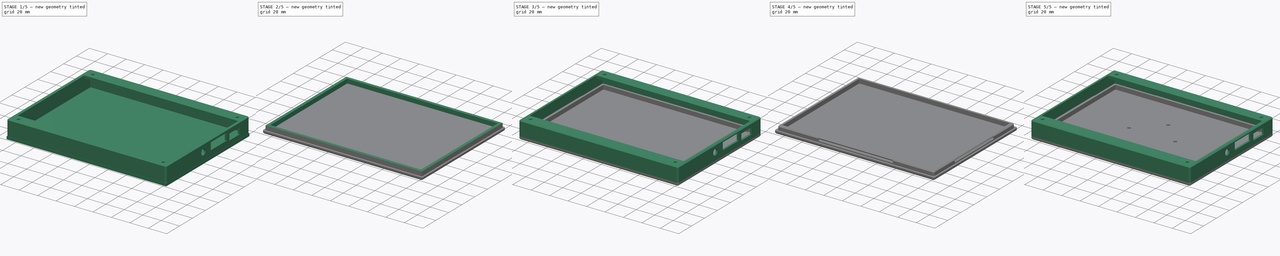
[diagram: build sequence overview — one tinted view per stage of 5, left to right]
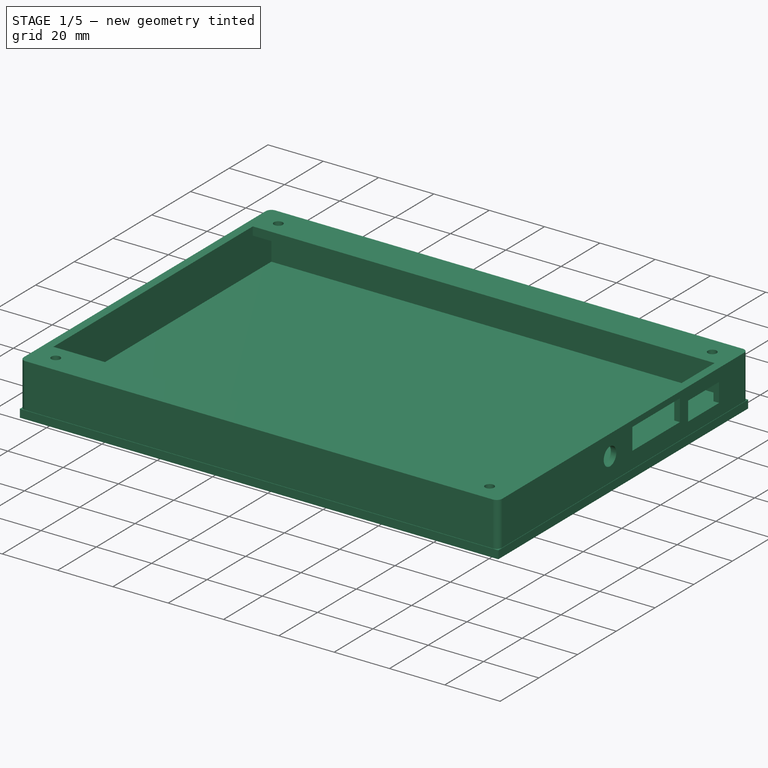
[diagram: stage 1 of 5 — iso view after this stage's code; geometry added in this stage tinted green]
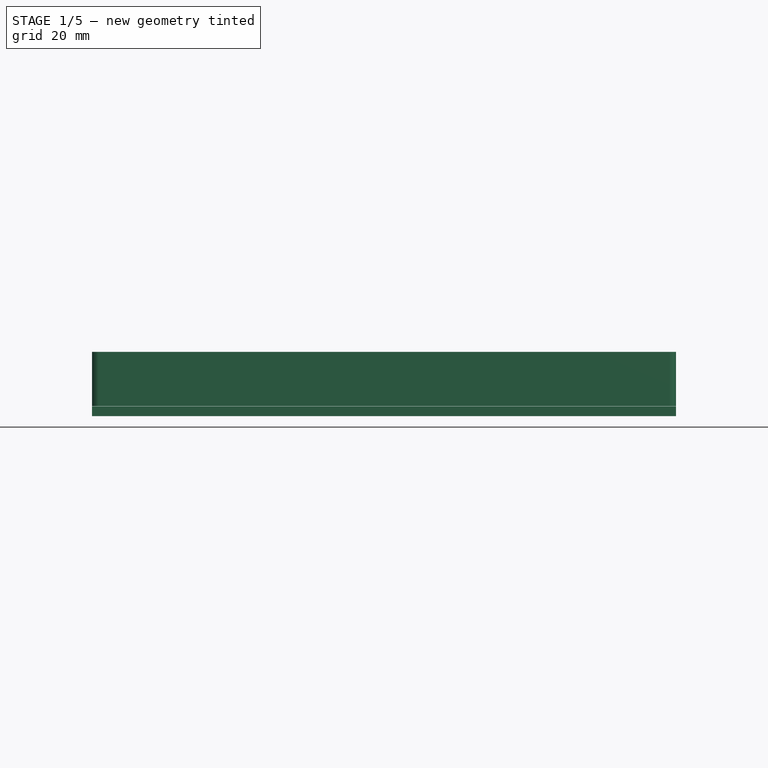
[diagram: stage 1 of 5 — front view after this stage's code; geometry added in this stage tinted green]
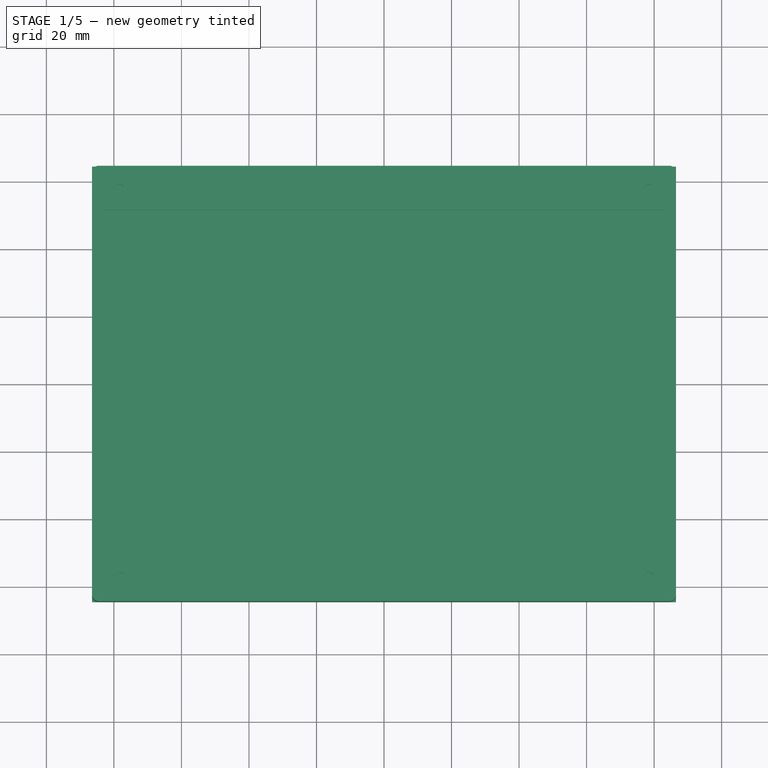
[diagram: stage 1 of 5 — top view after this stage's code; geometry added in this stage tinted green]
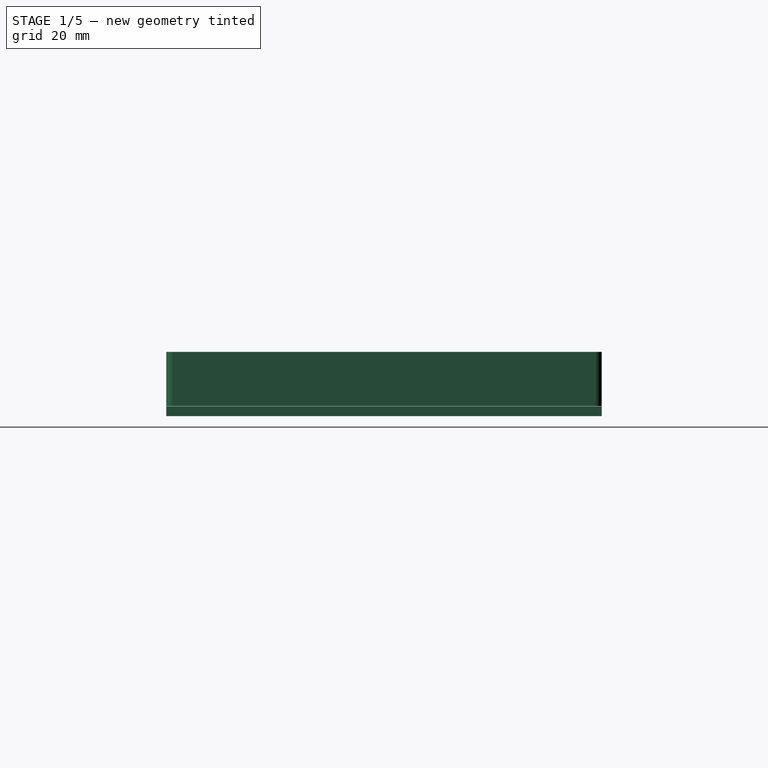
[diagram: stage 1 of 5 — right view after this stage's code; geometry added in this stage tinted green]
FCSTD DOCUMENT  (FreeCAD 1.0R39109 (Git))
Label: TouchScreenEnclosure
License: All rights reserved
LicenseURL: http://en.wikipedia.org/wiki/All_rights_reserved
objects: Sketcher::SketchObject×17, PartDesign::ShapeBinder×8, PartDesign::Pad×7, PartDesign::Body×6, PartDesign::Pocket×6, PartDesign::Fillet×4, PartDesign::Chamfer×3, Spreadsheet::Sheet×2, PartDesign::FeatureBase×2, PartDesign::LinearPattern×2, PartDesign::MultiTransform×1
note: 118 computed .brp shape members not serialized (recipe doc carries the construction recipe); baked Part::Feature solids carry a one-line shape summary decoded from their .brp

FEATURE [Spreadsheet::Sheet] Spreadsheet  label="Constants"
  cells = B2='WallTolerance; C2(WallTolerance)==0.12 mm; B3='BackTolerance; C3(BackTolerance)==0.1 mm; B4='FrontThickness; C4(FrontThickness)==3 mm; B5='BackThickness; C5(BackThickness)==3 mm; B6='WallThickess; C6(WallThickess)==2 mm; B7='BackOverlap; C7(BackOverlap)==1 mm; B8='LockHeight; C8(LockHeight)==3 mm; B10='GridHoleDiameter; C10(GridHoleDiameter)==7.5 mm; B11='GridSpacing; C11(GridSpacing)==1.2 mm; B13='AttchmentRingDiameter; C13(AttchmentRingDiameter)==50 mm
FEATURE [Sketcher::SketchObject] Sketch  label="Template_T"
  ArcFitTolerance = 1e-06
  AttachmentSupport = -> [XY_Plane]
  FullyConstrained = true
  MakeInternals = false
  MapMode = 5
  expr: Constraints[116] = <<Constants>>.WallThickess
  sketch-geometry (50):
    g0: LineSegment [constr] StartX=-78.45 StartY=57.48 StartZ=0 EndX=-78.45 EndY=-57.48 EndZ=0
    g1: LineSegment [constr] StartX=-78.45 StartY=-57.48 StartZ=0 EndX=78.45 EndY=-57.48 EndZ=0
    g2: LineSegment [constr] StartX=78.45 StartY=-57.48 StartZ=0 EndX=78.45 EndY=57.48 EndZ=0
    g3: LineSegment [constr] StartX=78.45 StartY=57.48 StartZ=0 EndX=-78.45 EndY=57.48 EndZ=0
    g4: Circle CenterX=-78.45 CenterY=57.48 CenterZ=0 NormalX=0 NormalY=0 NormalZ=1 AngleXU=0 Radius=1.6
    g5: Circle CenterX=78.45 CenterY=57.48 CenterZ=0 NormalX=0 NormalY=0 NormalZ=1 AngleXU=0 Radius=1.6
    g6: Circle CenterX=78.45 CenterY=-57.48 CenterZ=0 NormalX=0 NormalY=0 NormalZ=1 AngleXU=0 Radius=1.6
    g7: Circle CenterX=-78.45 CenterY=-57.48 CenterZ=0 NormalX=0 NormalY=0 NormalZ=1 AngleXU=0 Radius=1.6
    g8: LineSegment StartX=-83.5 StartY=51.5 StartZ=0 EndX=-83.5 EndY=-51.5 EndZ=0
    g9: LineSegment StartX=-83.5 StartY=-51.5 StartZ=0 EndX=83.5 EndY=-51.5 EndZ=0
    g10: LineSegment StartX=83.5 StartY=-51.5 StartZ=0 EndX=83.5 EndY=51.5 EndZ=0
    g11: LineSegment StartX=83.5 StartY=51.5 StartZ=0 EndX=-83.5 EndY=51.5 EndZ=0
    g12: LineSegment [constr] StartX=-83.5 StartY=51.5 StartZ=0 EndX=-78.45 EndY=57.48 EndZ=0
    g13: LineSegment [constr] StartX=78.45 StartY=57.48 StartZ=0 EndX=83.5 EndY=51.5 EndZ=0
    g14: LineSegment [constr] StartX=83.5 StartY=-51.5 StartZ=0 EndX=78.45 EndY=-57.48 EndZ=0
    g15: LineSegment [constr] StartX=-78.45 StartY=-57.48 StartZ=0 EndX=-83.5 EndY=-51.5 EndZ=0
    g16: LineSegment StartX=-84.5 StartY=62.5 StartZ=0 EndX=84.5 EndY=62.5 EndZ=0
    g17: LineSegment StartX=-84.5 StartY=-62.5 StartZ=0 EndX=84.5 EndY=-62.5 EndZ=0
    g18: LineSegment [constr] StartX=-78.45 StartY=57.48 StartZ=0 EndX=-78.45 EndY=62.5 EndZ=0
    g19: LineSegment [constr] StartX=-78.45 StartY=-62.5 StartZ=0 EndX=-78.45 EndY=-57.48 EndZ=0
    g20: LineSegment [constr] StartX=78.45 StartY=-57.48 StartZ=0 EndX=78.45 EndY=-62.5 EndZ=0
    g21: LineSegment [constr] StartX=78.45 StartY=57.48 StartZ=0 EndX=78.45 EndY=62.5 EndZ=0
    g22: LineSegment StartX=-86.5 StartY=64.5 StartZ=0 EndX=-86.5 EndY=-64.5 EndZ=0
    g23: LineSegment StartX=-86.5 StartY=-64.5 StartZ=0 EndX=86.5 EndY=-64.5 EndZ=0
    g24: LineSegment StartX=86.5 StartY=-64.5 StartZ=0 EndX=86.5 EndY=64.5 EndZ=0
    g25: LineSegment StartX=86.5 StartY=64.5 StartZ=0 EndX=-86.5 EndY=64.5 EndZ=0
    g26: LineSegment [constr] StartX=-78.45 StartY=62.5 StartZ=0 EndX=-78.45 EndY=64.5 EndZ=0
    g27: LineSegment [constr] StartX=84.5 StartY=62.5 StartZ=0 EndX=86.5 EndY=62.5 EndZ=0
    g28: LineSegment [constr] StartX=78.45 StartY=-62.5 StartZ=0 EndX=78.45 EndY=-64.5 EndZ=0
    g29: LineSegment [constr] StartX=-84.5 StartY=-51.5 StartZ=0 EndX=-86.5 EndY=-51.5 EndZ=0
    g30: ArcOfCircle CenterX=-78.45 CenterY=58.5 CenterZ=0 NormalX=0 NormalY=0 NormalZ=1 AngleXU=0 Radius=4 StartAngle=1.21e-14 EndAngle=3.14159
    g31: LineSegment StartX=-82.45 StartY=58.5 StartZ=0 EndX=-82.45 EndY=-58.5 EndZ=0
    g32: LineSegment StartX=-74.45 StartY=58.5 StartZ=0 EndX=-74.45 EndY=53.51 EndZ=0
    g33: LineSegment [constr] StartX=-82.45 StartY=58.5 StartZ=0 EndX=-74.45 EndY=58.5 EndZ=0
    g34: ArcOfCircle CenterX=78.45 CenterY=58.5 CenterZ=0 NormalX=0 NormalY=0 NormalZ=1 AngleXU=0 Radius=4 StartAngle=3.3e-15 EndAngle=3.14159
    g35: LineSegment [constr] StartX=74.45 StartY=58.5 StartZ=0 EndX=82.45 EndY=58.5 EndZ=0
    g36: LineSegment StartX=74.45 StartY=58.5 StartZ=0 EndX=74.45 EndY=53.51 EndZ=0
    g37: LineSegment StartX=82.45 StartY=58.5 StartZ=0 EndX=82.45 EndY=-58.5 EndZ=0
    g38: ArcOfCircle CenterX=-78.45 CenterY=-58.5 CenterZ=0 NormalX=0 NormalY=0 NormalZ=1 AngleXU=0 Radius=4 StartAngle=3.14159 EndAngle=6.28319
    g39: ArcOfCircle CenterX=78.45 CenterY=-58.5 CenterZ=0 NormalX=0 NormalY=0 NormalZ=1 AngleXU=0 Radius=4 StartAngle=3.14159 EndAngle=6.28319
    g40: LineSegment [constr] StartX=74.45 StartY=-58.5 StartZ=0 EndX=82.45 EndY=-58.5 EndZ=0
    g41: LineSegment [constr] StartX=-82.45 StartY=-58.5 StartZ=0 EndX=-74.45 EndY=-58.5 EndZ=0
    g42: LineSegment StartX=-74.45 StartY=-58.5 StartZ=0 EndX=-74.45 EndY=-53.51 EndZ=0
    g43: LineSegment StartX=74.45 StartY=-58.5 StartZ=0 EndX=74.45 EndY=-53.51 EndZ=0
    g44: LineSegment StartX=-74.45 StartY=53.51 StartZ=0 EndX=74.45 EndY=53.51 EndZ=0
    g45: LineSegment StartX=-74.45 StartY=-53.51 StartZ=0 EndX=74.45 EndY=-53.51 EndZ=0
    g46: LineSegment StartX=-84.5 StartY=-62.5 StartZ=0 EndX=-84.5 EndY=62.5 EndZ=0
    g47: LineSegment StartX=84.5 StartY=62.5 StartZ=0 EndX=84.5 EndY=-62.5 EndZ=0
    g48: LineSegment [constr] StartX=-84.5 StartY=-51.5 StartZ=0 EndX=-83.5 EndY=-51.5 EndZ=0
    g49: LineSegment [constr] StartX=83.5 StartY=-51.5 StartZ=0 EndX=84.5 EndY=-51.5 EndZ=0
  constraints (142):
    c: Coincident(g0,g1)
    c: Coincident(g1,g2)
    c: Coincident(g2,g3)
    c: Coincident(g3,g0)
    c: Vertical(g0)
    c: Vertical(g2)
    c: Horizontal(g1)
    c: Horizontal(g3)
    c: DistanceY(g0,g0) = 114.96
    c: Symmetric(g2,g0,g-1)  '__ANCHOR__'
    c: Coincident(g4,g0)
    c: Coincident(g5,g2)
    c: Coincident(g6,g1)
    c: Coincident(g7,g0)
    c: Equal(g4,g5)
    c: Equal(g5,g6)
    c: Equal(g6,g7)
    c: Radius(g4) = 1.6
    c: Coincident(g8,g9)
    c: Coincident(g9,g10)
    c: Coincident(g10,g11)
    c: Coincident(g11,g8)
    c: Vertical(g8)
    c: Vertical(g10)
    c: Horizontal(g9)
    c: Horizontal(g11)
    c: DistanceX(g11,g11) = 167  'ScreenWidth'
    c: Coincident(g12,g8)
    c: Coincident(g12,g0)
    c: Coincident(g13,g2)
    c: Coincident(g13,g10)
    c: Coincident(g14,g9)
    c: Coincident(g14,g1)
    c: Coincident(g15,g0)
    c: Coincident(g15,g8)
    c: Equal(g12,g13)
    c: Equal(g13,g14)
    c: Coincident(g18,g0)
    c: Coincident(g19,g0)
    c: Coincident(g20,g1)
    c: Coincident(g21,g2)
    c: Equal(g18,g19)
    c: Equal(g19,g20)
    c: Equal(g20,g21)
    c: Vertical(g18)
    c: Vertical(g19)
    c: Vertical(g20)
    c: Vertical(g21)
    c: Coincident(g22,g23)
    c: Coincident(g23,g24)
    c: Coincident(g24,g25)
    c: Coincident(g25,g22)
    c: Vertical(g22)
    c: Vertical(g24)
    c: Horizontal(g23)
    c: Horizontal(g25)
    c: PointOnObject(g26,g25)
    c: Vertical(g26)
    c: PointOnObject(g27,g24)
    c: Horizontal(g27)
    c: PointOnObject(g28,g23)
    c: Vertical(g28)
    c: PointOnObject(g29,g22)
    c: Horizontal(g29)
    c: DistanceY(g29,g8) = 103
    c: Equal(g26,g27)
    c: Equal(g27,g28)
    c: Equal(g28,g29)
    c: DistanceY(g17,g16) = 125
    c: PointOnObject(g30,g18)
    c: Radius(g30) = 4
    c: Vertical(g32)
    c: Coincident(g33,g30)
    c: Coincident(g33,g30)
    c: Horizontal(g33)
    c: PointOnObject(g30,g33)
    c: Coincident(g31,g30)
    c: Coincident(g32,g30)
    c: PointOnObject(g34,g21)
    c: Equal(g34,g30)
    c: Coincident(g35,g34)
    c: Coincident(g35,g34)
    c: Horizontal(g35)
    c: PointOnObject(g34,g35)
    c: Coincident(g36,g34)
    c: Vertical(g36)
    c: Coincident(g37,g34)
    c: PointOnObject(g38,g19)
    c: PointOnObject(g39,g20)
    c: Coincident(g40,g39)
    c: Coincident(g40,g39)
    c: Horizontal(g40)
    c: Coincident(g41,g38)
    c: Coincident(g41,g38)
    c: Horizontal(g41)
    c: Equal(g34,g39)
    c: Equal(g39,g38)
    c: PointOnObject(g38,g41)
    c: PointOnObject(g39,g40)
    c: Coincident(g38,g31)
    c: Coincident(g39,g37)
    c: Coincident(g42,g38)
    c: Vertical(g42)
    c: Coincident(g43,g39)
    c: Vertical(g43)
    c: Coincident(g44,g32)
    c: Coincident(g44,g36)
    c: Horizontal(g44)
    c: Coincident(g45,g42)
    c: Coincident(g45,g43)
    c: Horizontal(g45)
    c: Equal(g42,g32)
    c: DistanceY(g42,g32) = 107.02
    c: DistanceX(g8,g30) = 1.05
    c: Vertical(g46)
    c: PointOnObject(g29,g46)
    c: DistanceX(g22,g46) = 2
    c: Vertical(g47)
    c: PointOnObject(g21,g34)
    c: Coincident(g26,g18)
    c: PointOnObject(g18,g30)
    c: DistanceX(g26,g21) = 156.9
    c: Coincident(g16,g46)
    c: Coincident(g16,g47)
    c: PointOnObject(g21,g16)
    c: PointOnObject(g18,g16)
    c: Coincident(g17,g46)
    c: PointOnObject(g19,g17)
    c: PointOnObject(g19,g38)
    c: Coincident(g17,g47)
    c: Coincident(g20,g28)
    c: PointOnObject(g20,g39)
    c: PointOnObject(g20,g17)
    c: Coincident(g48,g29)
    c: Coincident(g48,g8)
    c: Horizontal(g48)
    c: Coincident(g49,g9)
    c: PointOnObject(g49,g47)
    c: Horizontal(g49)
    c: Equal(g49,g48)
    c: DistanceX(g17,g8) = 1
    c: Coincident(g27,g16)
FEATURE [Sketcher::SketchObject] Sketch002  label="Template_R"
  ArcFitTolerance = 1e-06
  AttachmentSupport = -> [YZ_Plane]
  ExternalGeometry = -> [Sketch]
  FullyConstrained = true
  MakeInternals = false
  MapMode = 5
  Placement = pos=(0,0,0) rot=(0.57735,0.57735,0.57735;2.0944rad)
  sketch-geometry (20):
    g0: LineSegment [constr] StartX=-57.48 StartY=-1.6 StartZ=0 EndX=57.48 EndY=-1.6 EndZ=0
    g1: LineSegment [constr] StartX=57.48 StartY=-1.6 StartZ=0 EndX=57.48 EndY=0 EndZ=0
    g2: LineSegment [constr] StartX=-57.48 StartY=-1.6 StartZ=0 EndX=-57.48 EndY=0 EndZ=0
    g3: LineSegment StartX=33.98 StartY=-1.6 StartZ=0 EndX=33.98 EndY=-7.95 EndZ=0
    g4: LineSegment StartX=33.98 StartY=-7.95 StartZ=0 EndX=48.98 EndY=-7.95 EndZ=0
    g5: LineSegment StartX=48.98 StartY=-7.95 StartZ=0 EndX=48.98 EndY=-1.6 EndZ=0
    g6: LineSegment StartX=48.98 StartY=-1.6 StartZ=0 EndX=33.98 EndY=-1.6 EndZ=0
    g7: GeomPoint X=41.48 Y=-1.6 Z=0
    g8: LineSegment StartX=19.73 StartY=-1.6 StartZ=0 EndX=19.73 EndY=-4.6 EndZ=0
    g9: LineSegment StartX=19.73 StartY=-4.6 StartZ=0 EndX=27.23 EndY=-4.6 EndZ=0
    g10: LineSegment StartX=27.23 StartY=-4.6 StartZ=0 EndX=27.23 EndY=-1.6 EndZ=0
    g11: LineSegment StartX=27.23 StartY=-1.6 StartZ=0 EndX=19.73 EndY=-1.6 EndZ=0
    g12: GeomPoint X=23.48 Y=-1.6 Z=0
    g13: LineSegment StartX=6.73 StartY=-1.6 StartZ=0 EndX=6.73 EndY=-4.6 EndZ=0
    g14: LineSegment StartX=6.73 StartY=-4.6 StartZ=0 EndX=14.23 EndY=-4.6 EndZ=0
    g15: LineSegment StartX=14.23 StartY=-4.6 StartZ=0 EndX=14.23 EndY=-1.6 EndZ=0
    g16: LineSegment StartX=14.23 StartY=-1.6 StartZ=0 EndX=6.73 EndY=-1.6 EndZ=0
    g17: GeomPoint X=10.48 Y=-1.6 Z=0
    g18: Circle CenterX=-6.82 CenterY=-4.4 CenterZ=0 NormalX=0 NormalY=0 NormalZ=1 AngleXU=0 Radius=2.5
    g19: LineSegment [constr] StartX=-6.82 StartY=-1.6 StartZ=0 EndX=-6.82 EndY=-1.9 EndZ=0
  constraints (55):
    c: Horizontal(g0)
    c: Coincident(g1,g0)
    c: Vertical(g1)
    c: Symmetric(g-4,g-4,g1)
    c: Coincident(g2,g0)
    c: Vertical(g2)
    c: Symmetric(g-3,g-3,g2)
    c: DistanceY(g0,g-3) = 1.6
    c: Coincident(g3,g4)
    c: Coincident(g4,g5)
    c: Coincident(g5,g6)
    c: Coincident(g6,g3)
    c: Vertical(g3)
    c: Vertical(g5)
    c: Horizontal(g4)
    c: PointOnObject(g3,g0)
    c: Symmetric(g3,g5,g7)
    c: PointOnObject(g5,g0)
    c: DistanceX(g7,g1) = 16
    c: DistanceX(g4,g4) = 15
    c: DistanceY(g5,g5) = 6.35
    c: Coincident(g8,g9)
    c: Coincident(g9,g10)
    c: Coincident(g10,g11)
    c: Coincident(g11,g8)
    c: Vertical(g8)
    c: Vertical(g10)
    c: Horizontal(g9)
    c: PointOnObject(g8,g0)
    c: PointOnObject(g10,g0)
    c: Symmetric(g8,g10,g12)
    c: DistanceX(g9,g9) = 7.5
    c: DistanceX(g12,g1) = 34
    c: DistanceY(g10,g10) = 3
    c: Coincident(g13,g14)
    c: Coincident(g14,g15)
    c: Coincident(g15,g16)
    c: Coincident(g16,g13)
    c: Vertical(g13)
    c: Vertical(g15)
    c: Horizontal(g14)
    c: PointOnObject(g13,g0)
    c: Equal(g8,g15)
    c: PointOnObject(g15,g0)
    c: Symmetric(g13,g15,g17)
    c: DistanceX(g17,g0) = 47
    c: Equal(g9,g14)
    c: Radius(g18) = 2.5
    c: DistanceX(g13,g9) = 20.5
    c: PointOnObject(g19,g0)
    c: Vertical(g19)
    c: DistanceX(g19,g0) = 64.3
    c: PointOnObject(g19,g18)
    c: PointOnObject(g18,g19)
    c: DistanceY(g19,g19) = 0.3
FEATURE [PartDesign::Body] Body  label="Templates"
  AllowCompound = false
  Group = -> [Sketch,Sketch002]
  Origin = -> Origin
FEATURE [PartDesign::ShapeBinder] ShapeBinder  label="F_T"
  Support = -> [Sketch]
  TraceSupport = false
FEATURE [PartDesign::ShapeBinder] ShapeBinder001  label="F_R"
  Placement = pos=(0,0,0) rot=(0.57735,0.57735,0.57735;2.0944rad)
  Support = -> [Sketch002]
  TraceSupport = false
FEATURE [Sketcher::SketchObject] Sketch003  label="F_Walls"
  ArcFitTolerance = 1e-06
  AttachmentSupport = -> [XY_Plane001]
  ExternalGeometry = -> [ShapeBinder]
  FullyConstrained = true
  MakeInternals = false
  MapMode = 5
  sketch-geometry (8):
    g0: LineSegment StartX=-86.5 StartY=64.5 StartZ=0 EndX=-86.5 EndY=-64.5 EndZ=0
    g1: LineSegment StartX=-86.5 StartY=-64.5 StartZ=0 EndX=86.5 EndY=-64.5 EndZ=0
    g2: LineSegment StartX=86.5 StartY=-64.5 StartZ=0 EndX=86.5 EndY=64.5 EndZ=0
    g3: LineSegment StartX=86.5 StartY=64.5 StartZ=0 EndX=-86.5 EndY=64.5 EndZ=0
    g4: LineSegment StartX=-84.5 StartY=62.5 StartZ=0 EndX=-84.5 EndY=-62.5 EndZ=0
    g5: LineSegment StartX=-84.5 StartY=-62.5 StartZ=0 EndX=84.5 EndY=-62.5 EndZ=0
    g6: LineSegment StartX=84.5 StartY=-62.5 StartZ=0 EndX=84.5 EndY=62.5 EndZ=0
    g7: LineSegment StartX=84.5 StartY=62.5 StartZ=0 EndX=-84.5 EndY=62.5 EndZ=0
  constraints (16):
    c: Coincident(g0,g1)
    c: Coincident(g1,g2)
    c: Coincident(g2,g3)
    c: Coincident(g3,g0)
    c: Coincident(g0,g-3)
    c: Coincident(g1,g-4)
    c: Coincident(g4,g5)
    c: Coincident(g5,g6)
    c: Coincident(g6,g7)
    c: Coincident(g7,g4)
    c: Coincident(g4,g-6)
    c: Coincident(g5,g-5)
    c: Coincident(g2,g-3)
    c: Coincident(g6,g-6)
    c: Coincident(g4,g-5)
    c: Coincident(g0,g-4)
FEATURE [PartDesign::Pad] Pad  label="F_Walls_"
  Direction = (0,0,1)
  Length = 13
  Length2 = 10
  Profile = -> Sketch003
  ReferenceAxis = -> Sketch003 [N_Axis]
  Reversed = true
  Suppressed = false
  Type = 0
FEATURE [Sketcher::SketchObject] Sketch004  label="F_Front"
  ArcFitTolerance = 1e-06
  AttachmentSupport = -> [XY_Plane001]
  ExternalGeometry = -> [ShapeBinder]
  FullyConstrained = true
  MakeInternals = false
  MapMode = 5
  sketch-geometry (12):
    g0: Circle CenterX=-78.45 CenterY=57.48 CenterZ=0 NormalX=0 NormalY=0 NormalZ=1 AngleXU=0 Radius=1.6
    g1: Circle CenterX=78.45 CenterY=57.48 CenterZ=0 NormalX=0 NormalY=0 NormalZ=1 AngleXU=0 Radius=1.6
    g2: Circle CenterX=78.45 CenterY=-57.48 CenterZ=0 NormalX=0 NormalY=0 NormalZ=1 AngleXU=0 Radius=1.6
    g3: Circle CenterX=-78.45 CenterY=-57.48 CenterZ=0 NormalX=0 NormalY=0 NormalZ=1 AngleXU=0 Radius=1.6
    g4: LineSegment StartX=-86.5 StartY=64.5 StartZ=0 EndX=-86.5 EndY=-64.5 EndZ=0
    g5: LineSegment StartX=-86.5 StartY=-64.5 StartZ=0 EndX=86.5 EndY=-64.5 EndZ=0
    g6: LineSegment StartX=86.5 StartY=-64.5 StartZ=0 EndX=86.5 EndY=64.5 EndZ=0
    g7: LineSegment StartX=86.5 StartY=64.5 StartZ=0 EndX=-86.5 EndY=64.5 EndZ=0
    g8: LineSegment StartX=83.5 StartY=-51.5 StartZ=0 EndX=83.5 EndY=51.5 EndZ=0
    g9: LineSegment StartX=83.5 StartY=51.5 StartZ=0 EndX=-83.5 EndY=51.5 EndZ=0
    g10: LineSegment StartX=-83.5 StartY=51.5 StartZ=0 EndX=-83.5 EndY=-51.5 EndZ=0
    g11: LineSegment StartX=-83.5 StartY=-51.5 StartZ=0 EndX=83.5 EndY=-51.5 EndZ=0
  constraints (24):
    c: Coincident(g0,g-3)
    c: Equal(g0,g-3)
    c: Coincident(g1,g-4)
    c: Equal(g1,g-4)
    c: Coincident(g2,g-5)
    c: Equal(g2,g-5)
    c: Coincident(g3,g-6)
    c: Equal(g3,g-6)
    c: Coincident(g4,g5)
    c: Coincident(g5,g6)
    c: Coincident(g6,g7)
    c: Coincident(g7,g4)
    c: Coincident(g4,g-7)
    c: Coincident(g5,g-8)
    c: Coincident(g8,g9)
    c: Coincident(g9,g10)
    c: Coincident(g10,g11)
    c: Coincident(g11,g8)
    c: Coincident(g8,g-9)
    c: Coincident(g9,g-10)
    c: Coincident(g6,g-7)
    c: Coincident(g8,g-10)
    c: Coincident(g10,g-9)
    c: Coincident(g4,g-8)
FEATURE [PartDesign::Pad] Pad001  label="F_Front_"
  BaseFeature = -> Pad
  Direction = (0,0,1)
  Length = 3
  Length2 = 10
  Profile = -> Sketch004
  ReferenceAxis = -> Sketch004 [N_Axis]
  Refine = true
  Suppressed = false
  Type = 0
  expr: Length = <<Constants>>.FrontThickness
FEATURE [Sketcher::SketchObject] Sketch005  label="F_ConnectorHoles"
  ArcFitTolerance = 1e-06
  AttachmentSupport = -> [YZ_Plane001]
  ExternalGeometry = -> [ShapeBinder001]
  FullyConstrained = true
  MakeInternals = false
  MapMode = 5
  Placement = pos=(0,0,0) rot=(0.57735,0.57735,0.57735;2.0944rad)
  sketch-geometry (17):
    g0: LineSegment StartX=4.73 StartY=-7 StartZ=0 EndX=29.23 EndY=-7 EndZ=0
    g1: LineSegment StartX=29.23 StartY=-7 StartZ=0 EndX=29.23 EndY=0.8 EndZ=0
    g2: LineSegment StartX=29.23 StartY=0.8 StartZ=0 EndX=4.73 EndY=0.8 EndZ=0
    g3: LineSegment StartX=4.73 StartY=0.8 StartZ=0 EndX=4.73 EndY=-7 EndZ=0
    g4: LineSegment StartX=33.48 StartY=-1.6 StartZ=0 EndX=33.48 EndY=-8.45 EndZ=0
    g5: LineSegment StartX=33.48 StartY=-8.45 StartZ=0 EndX=49.48 EndY=-8.45 EndZ=0
    g6: LineSegment StartX=49.48 StartY=-8.45 StartZ=0 EndX=49.48 EndY=-1.6 EndZ=0
    g7: LineSegment StartX=49.48 StartY=-1.6 StartZ=0 EndX=33.48 EndY=-1.6 EndZ=0
    g8: LineSegment [constr] StartX=33.98 StartY=-1.6 StartZ=0 EndX=33.48 EndY=-1.6 EndZ=0
    g9: LineSegment [constr] StartX=48.98 StartY=-7.95 StartZ=0 EndX=49.48 EndY=-7.95 EndZ=0
    g10: LineSegment [constr] StartX=33.98 StartY=-7.95 StartZ=0 EndX=33.98 EndY=-8.45 EndZ=0
    g11: LineSegment [constr] StartX=6.73 StartY=-1.6 StartZ=0 EndX=4.73 EndY=-1.6 EndZ=0
    g12: LineSegment [constr] StartX=27.23 StartY=-1.6 StartZ=0 EndX=27.23 EndY=0.8 EndZ=0
    g13: LineSegment [constr] StartX=27.23 StartY=-4.6 StartZ=0 EndX=29.23 EndY=-4.6 EndZ=0
    g14: LineSegment [constr] StartX=6.73 StartY=-4.6 StartZ=0 EndX=6.73 EndY=-7 EndZ=0
    g15: Circle CenterX=-6.82 CenterY=-4.4 CenterZ=0 NormalX=0 NormalY=0 NormalZ=1 AngleXU=0 Radius=3.25
    g16: LineSegment [constr] StartX=-4.32 StartY=-4.4 StartZ=0 EndX=-3.57 EndY=-4.4 EndZ=0
  constraints (52):
    c: Coincident(g0,g1)
    c: Coincident(g1,g2)
    c: Coincident(g2,g3)
    c: Coincident(g3,g0)
    c: Horizontal(g0)
    c: Horizontal(g2)
    c: Vertical(g1)
    c: Vertical(g3)
    c: Coincident(g4,g5)
    c: Coincident(g5,g6)
    c: Coincident(g6,g7)
    c: Coincident(g7,g4)
    c: Vertical(g4)
    c: Vertical(g6)
    c: Horizontal(g5)
    c: Horizontal(g7)
    c: Coincident(g8,g-3)
    c: PointOnObject(g8,g4)
    c: Horizontal(g8)
    c: Coincident(g9,g-4)
    c: PointOnObject(g9,g6)
    c: Horizontal(g9)
    c: Coincident(g10,g-4)
    c: PointOnObject(g10,g5)
    c: Vertical(g10)
    c: Equal(g9,g10)
    c: DistanceX(g4,g8) = 0.5
    c: Coincident(g11,g-6)
    c: Horizontal(g11)
    c: Coincident(g12,g-5)
    c: PointOnObject(g12,g2)
    c: Vertical(g12)
    c: Coincident(g13,g-5)
    c: PointOnObject(g13,g1)
    c: Horizontal(g13)
    c: Coincident(g14,g-6)
    c: PointOnObject(g14,g0)
    c: Vertical(g14)
    c: DistanceX(g12,g1) = 2
    c: PointOnObject(g11,g3)
    c: Coincident(g15,g-7)
    c: PointOnObject(g16,g-7)
    c: PointOnObject(g16,g15)
    c: Horizontal(g16)
    c: PointOnObject(g15,g16)
    c: DistanceX(g16,g16) = 0.75
    c: Equal(g8,g10)
    c: PointOnObject(g-3,g7)
    c: Equal(g11,g13)
    c: Equal(g12,g14)
    c: DistanceY(g11,g2) = 2.4
    c: DistanceY(g1,g1) = 7.8
FEATURE [PartDesign::Pocket] Pocket  label="F_ConnectorHoles_"
  BaseFeature = -> Pad001
  Direction = (-1,0,0)
  Length = 5
  Length2 = 5
  Profile = -> Sketch005
  ReferenceAxis = -> Sketch005 [N_Axis]
  Reversed = true
  Suppressed = false
  Type = 1
FEATURE [Sketcher::SketchObject] Sketch006  label="F_YZLock"
  ArcFitTolerance = 1e-06
  AttachmentSupport = -> [YZ_Plane001]
  ExternalGeometry = -> [ShapeBinder]
  FullyConstrained = true
  MakeInternals = false
  MapMode = 5
  Placement = pos=(0,0,0) rot=(0.57735,0.57735,0.57735;2.0944rad)
  expr: Constraints[21] = <<Constants>>.LockHeight
  expr: Constraints[4] = <<F_Walls_>>.Length - <<Constants>>.BackOverlap - <<Constants>>.LockHeight
  sketch-geometry (9):
    g0: LineSegment [constr] StartX=62.5 StartY=0 StartZ=0 EndX=62.5 EndY=-9 EndZ=0
    g1: LineSegment [constr] StartX=-62.5 StartY=0 StartZ=0 EndX=-62.5 EndY=-9 EndZ=0
    g2: LineSegment [constr] StartX=62.5 StartY=-9 StartZ=0 EndX=-62.5 EndY=-9 EndZ=0
    g3: LineSegment StartX=62.5 StartY=-9 StartZ=0 EndX=62.5 EndY=-12 EndZ=0
    g4: LineSegment StartX=62.5 StartY=-12 StartZ=0 EndX=61 EndY=-10.5 EndZ=0
    g5: LineSegment StartX=61 StartY=-10.5 StartZ=0 EndX=62.5 EndY=-9 EndZ=0
    g6: LineSegment StartX=-62.5 StartY=-9 StartZ=0 EndX=-62.5 EndY=-12 EndZ=0
    g7: LineSegment StartX=-62.5 StartY=-12 StartZ=0 EndX=-61 EndY=-10.5 EndZ=0
    g8: LineSegment StartX=-61 StartY=-10.5 StartZ=0 EndX=-62.5 EndY=-9 EndZ=0
  constraints (25):
    c: Coincident(g0,g-3)
    c: Vertical(g0)
    c: Coincident(g1,g-4)
    c: Vertical(g1)
    c: DistanceY(g0,g0) = 9
    c: Coincident(g2,g0)
    c: Coincident(g2,g1)
    c: Horizontal(g2)
    c: Coincident(g0,g3)
    c: Vertical(g3)
    c: Coincident(g3,g4)
    c: Coincident(g4,g5)
    c: Coincident(g5,g3)
    c: Coincident(g1,g6)
    c: Vertical(g6)
    c: Coincident(g6,g7)
    c: Coincident(g7,g8)
    c: Coincident(g8,g6)
    c: Equal(g8,g7)
    c: Equal(g6,g3)
    c: Equal(g5,g4)
    c: DistanceY(g3,g3) = 3
    c: Perpendicular(g5,g4)
    c: Equal(g4,g7)
    c: DistanceX(g4,g3) = 1.5  'LockDepth'
FEATURE [Sketcher::SketchObject] Sketch007  label="F_XZLock"
  ArcFitTolerance = 1e-06
  AttachmentSupport = -> [XZ_Plane001]
  ExternalGeometry = -> [ShapeBinder]
  FullyConstrained = true
  MakeInternals = false
  MapMode = 5
  Placement = pos=(0,0,0) rot=(1,0,0;1.5708rad)
  expr: Constraints[21] = <<Constants>>.LockHeight
  expr: Constraints[5] = <<F_Walls_>>.Length - <<Constants>>.BackOverlap - <<Constants>>.LockHeight
  sketch-geometry (9):
    g0: LineSegment [constr] StartX=-84.5 StartY=1.39e-14 StartZ=0 EndX=-84.5 EndY=-9 EndZ=0
    g1: LineSegment [constr] StartX=84.5 StartY=0 StartZ=0 EndX=84.5 EndY=-9 EndZ=0
    g2: LineSegment [constr] StartX=84.5 StartY=-9 StartZ=0 EndX=-84.5 EndY=-9 EndZ=0
    g3: LineSegment StartX=-84.5 StartY=-9 StartZ=0 EndX=-84.5 EndY=-12 EndZ=0
    g4: LineSegment StartX=-84.5 StartY=-12 StartZ=0 EndX=-83 EndY=-10.5 EndZ=0
    g5: LineSegment StartX=-83 StartY=-10.5 StartZ=0 EndX=-84.5 EndY=-9 EndZ=0
    g6: LineSegment StartX=84.5 StartY=-9 StartZ=0 EndX=84.5 EndY=-12 EndZ=0
    g7: LineSegment StartX=84.5 StartY=-12 StartZ=0 EndX=83 EndY=-10.5 EndZ=0
    g8: LineSegment StartX=83 StartY=-10.5 StartZ=0 EndX=84.5 EndY=-9 EndZ=0
  constraints (24):
    c: Vertical(g0)
    c: Vertical(g1)
    c: Coincident(g2,g1)
    c: Coincident(g2,g0)
    c: Horizontal(g2)
    c: DistanceY(g0,g0) = 9
    c: Coincident(g0,g3)
    c: Vertical(g3)
    c: Coincident(g3,g4)
    c: Coincident(g4,g5)
    c: Coincident(g5,g3)
    c: Coincident(g1,g6)
    c: Vertical(g6)
    c: Coincident(g6,g7)
    c: Coincident(g7,g8)
    c: Coincident(g8,g6)
    c: Equal(g8,g7)
    c: Equal(g6,g3)
    c: Equal(g4,g5)
    c: Equal(g4,g7)
    c: Perpendicular(g5,g4)
    c: DistanceY(g3,g3) = 3
    c: Coincident(g0,g-3)
    c: Coincident(g1,g-3)
FEATURE [PartDesign::Fillet] Fillet
  Base = -> Pocket [Edge9,Edge11,Edge15,Edge12]
  BaseFeature = -> Pocket
  Radius = 2
  SupportTransform = false
  Suppressed = false
  UseAllEdges = false
  expr: Radius = <<Constants>>.WallThickess
FEATURE [PartDesign::Body] Body001  label="Front"
  AllowCompound = false
  Group = -> [ShapeBinder,ShapeBinder001,Sketch003,Pad,Sketch004,Pad001,Sketch005,Pocket,Sketch006,Fillet,Chamfer,Pad002,Sketch007,Pad003,Fillet003]
  Origin = -> Origin001
  Tip = -> Fillet003
FEATURE [Sketcher::SketchObject] Sketch012  label="B_Template_T"
  ArcFitTolerance = 1e-06
  AttachmentSupport = -> [XY_Plane002]
  ExternalGeometry = -> [ShapeBinder002]
  FullyConstrained = true
  MakeInternals = false
  MapMode = 5
  expr: Constraints[47] = <<Constants>>.AttchmentRingDiameter
  expr: Constraints[68] = <<Constants>>.WallTolerance
  expr: Constraints[85] = <<Constants>>.WallThickess - 0.4 mm + <<F_YZLock>>.Constraints.LockDepth
  sketch-geometry (30):
    g0: LineSegment StartX=-86.5 StartY=64.5 StartZ=0 EndX=-86.5 EndY=-64.5 EndZ=0
    g1: LineSegment StartX=-86.5 StartY=-64.5 StartZ=0 EndX=86.5 EndY=-64.5 EndZ=0
    g2: LineSegment StartX=86.5 StartY=-64.5 StartZ=0 EndX=86.5 EndY=64.5 EndZ=0
    g3: LineSegment StartX=86.5 StartY=64.5 StartZ=0 EndX=-86.5 EndY=64.5 EndZ=0
    g4: LineSegment StartX=-84.38 StartY=62.38 StartZ=0 EndX=-84.38 EndY=-62.38 EndZ=0
    g5: LineSegment StartX=-84.38 StartY=-62.38 StartZ=0 EndX=84.62 EndY=-62.38 EndZ=0
    g6: LineSegment StartX=84.62 StartY=-62.38 StartZ=0 EndX=84.62 EndY=62.38 EndZ=0
    g7: LineSegment StartX=84.62 StartY=62.38 StartZ=0 EndX=-84.38 EndY=62.38 EndZ=0
    g8: LineSegment StartX=-81.28 StartY=59.28 StartZ=0 EndX=-81.28 EndY=-59.28 EndZ=0
    g9: LineSegment StartX=-81.28 StartY=-59.28 StartZ=0 EndX=81.52 EndY=-59.28 EndZ=0
    g10: LineSegment StartX=81.52 StartY=-59.28 StartZ=0 EndX=81.52 EndY=59.28 EndZ=0
    g11: LineSegment StartX=81.52 StartY=59.28 StartZ=0 EndX=-81.28 EndY=59.28 EndZ=0
    g12: Circle CenterX=0.12 CenterY=2.1e-15 CenterZ=0 NormalX=0 NormalY=0 NormalZ=1 AngleXU=0 Radius=25
    g13: LineSegment [constr] StartX=-24.88 StartY=2.1e-15 StartZ=0 EndX=25.12 EndY=2.1e-15 EndZ=0
    g14: Circle CenterX=0.12 CenterY=25 CenterZ=0 NormalX=0 NormalY=0 NormalZ=1 AngleXU=0 Radius=1.75
    g15: Circle CenterX=25.12 CenterY=2.1e-15 CenterZ=0 NormalX=0 NormalY=0 NormalZ=1 AngleXU=0 Radius=1.75
    g16: Circle CenterX=0.12 CenterY=-25 CenterZ=0 NormalX=0 NormalY=0 NormalZ=1 AngleXU=0 Radius=1.75
    g17: Circle CenterX=-24.88 CenterY=2.1e-15 CenterZ=0 NormalX=0 NormalY=0 NormalZ=1 AngleXU=0 Radius=1.75
    g18: Circle CenterX=0.12 CenterY=2.1e-15 CenterZ=0 NormalX=0 NormalY=0 NormalZ=1 AngleXU=0 Radius=30.75
    g19: LineSegment [constr] StartX=0.12 StartY=26.75 StartZ=0 EndX=0.12 EndY=30.75 EndZ=0
    g20: LineSegment [constr] StartX=0.12 StartY=23.25 StartZ=0 EndX=0.12 EndY=19.25 EndZ=0
    g21: Circle CenterX=0.12 CenterY=2.1e-15 CenterZ=0 NormalX=0 NormalY=0 NormalZ=1 AngleXU=0 Radius=19.25
    g22: LineSegment [constr] StartX=-84.38 StartY=62.38 StartZ=0 EndX=-84.38 EndY=62.5 EndZ=0
    g23: LineSegment [constr] StartX=84.62 StartY=62.38 StartZ=0 EndX=84.5 EndY=62.38 EndZ=0
    g24: LineSegment [constr] StartX=84.62 StartY=-62.38 StartZ=0 EndX=84.62 EndY=-62.5 EndZ=0
    g25: LineSegment [constr] StartX=-84.38 StartY=-62.38 StartZ=0 EndX=-84.5 EndY=-62.38 EndZ=0
    g26: LineSegment [constr] StartX=-81.28 StartY=59.28 StartZ=0 EndX=-81.28 EndY=62.38 EndZ=0
    g27: LineSegment [constr] StartX=81.52 StartY=59.28 StartZ=0 EndX=84.62 EndY=59.28 EndZ=0
    g28: LineSegment [constr] StartX=81.52 StartY=-59.28 StartZ=0 EndX=81.52 EndY=-62.38 EndZ=0
    g29: LineSegment [constr] StartX=-81.28 StartY=-59.28 StartZ=0 EndX=-84.38 EndY=-59.28 EndZ=0
  constraints (89):
    c: Coincident(g0,g1)
    c: Coincident(g1,g2)
    c: Coincident(g2,g3)
    c: Coincident(g3,g0)
    c: Coincident(g4,g5)
    c: Coincident(g5,g6)
    c: Coincident(g6,g7)
    c: Coincident(g7,g4)
    c: Vertical(g4)
    c: Vertical(g6)
    c: Horizontal(g5)
    c: Horizontal(g7)
    c: Coincident(g8,g9)
    c: Coincident(g9,g10)
    c: Coincident(g10,g11)
    c: Coincident(g11,g8)
    c: Vertical(g8)
    c: Vertical(g10)
    c: Horizontal(g9)
    c: Horizontal(g11)
    c: Symmetric(g8,g10,g12)
    c: Horizontal(g13)
    c: PointOnObject(g12,g13)
    c: PointOnObject(g14,g12)
    c: PointOnObject(g13,g12)
    c: PointOnObject(g16,g12)
    c: PointOnObject(g13,g12)
    c: Coincident(g15,g13)
    c: Coincident(g17,g13)
    c: Equal(g14,g15)
    c: Equal(g15,g16)
    c: Equal(g16,g17)
    c: Radius(g14) = 1.75
    c: Coincident(g12,g18)
    c: PointOnObject(g19,g14)
    c: PointOnObject(g19,g18)
    c: Vertical(g19)
    c: DistanceY(g19,g19) = 4
    c: PointOnObject(g20,g14)
    c: Vertical(g20)
    c: PointOnObject(g19,g20)
    c: PointOnObject(g12,g20)
    c: Equal(g20,g19)
    c: PointOnObject(g14,g20)
    c: PointOnObject(g20,g21)
    c: Coincident(g12,g21)
    c: PointOnObject(g16,g20)
    c: Diameter(g12) = 50
    c: DistanceX(g3,g3) = 173  'OuterWidth'
    c: DistanceY(g0,g0) = 129  'OuterLength'
    c: Diameter(g18) = 61.5
    c: Coincident(g1,g-4)
    c: Coincident(g2,g-3)
    c: Coincident(g0,g-3)
    c: Coincident(g0,g-4)
    c: Coincident(g22,g4)
    c: PointOnObject(g22,g-6)
    c: Vertical(g22)
    c: Coincident(g23,g6)
    c: PointOnObject(g23,g-8)
    c: Horizontal(g23)
    c: Coincident(g24,g5)
    c: PointOnObject(g24,g-5)
    c: Vertical(g24)
    c: Coincident(g25,g4)
    c: PointOnObject(g25,g-7)
    c: Horizontal(g25)
    c: Equal(g22,g25)
    c: DistanceX(g-7,g22) = 0.12
    c: Coincident(g26,g8)
    c: PointOnObject(g26,g7)
    c: Vertical(g26)
    c: DistanceX(g26,g10) = 162.8  'InternalWidth'
    c: Coincident(g27,g10)
    c: PointOnObject(g27,g6)
    c: Horizontal(g27)
    c: Equal(g25,g24)
    c: Equal(g24,g23)
    c: Coincident(g28,g9)
    c: PointOnObject(g28,g5)
    c: Vertical(g28)
    c: Coincident(g29,g8)
    c: PointOnObject(g29,g4)
    c: Horizontal(g29)
    c: DistanceY(g29,g8) = 118.56  'InternalLength'
    c: DistanceX(g22,g26) = 3.1
    c: Equal(g26,g27)
    c: Equal(g27,g28)
    c: Equal(g28,g29)
FEATURE [Sketcher::SketchObject] Sketch008
  ArcFitTolerance = 1e-06
  AttachmentOffset = pos=(0,0,-16) rot=(0,0,1;0rad)
  AttachmentSupport = -> [XY_Plane002]
  ExternalGeometry = -> [Sketch012]
  FullyConstrained = true
  MakeInternals = false
  MapMode = 5
  Placement = pos=(0,0,-16) rot=(0,0,1;0rad)
  expr: .AttachmentOffset.Base.z = -<<F_Walls_>>.Length - <<Constants>>.BackThickness
  sketch-geometry (4):
    g0: LineSegment StartX=-86.5 StartY=64.5 StartZ=0 EndX=-86.5 EndY=-64.5 EndZ=0
    g1: LineSegment StartX=-86.5 StartY=-64.5 StartZ=0 EndX=86.5 EndY=-64.5 EndZ=0
    g2: LineSegment StartX=86.5 StartY=-64.5 StartZ=0 EndX=86.5 EndY=64.5 EndZ=0
    g3: LineSegment StartX=86.5 StartY=64.5 StartZ=0 EndX=-86.5 EndY=64.5 EndZ=0
  constraints (8):
    c: Coincident(g0,g1)
    c: Coincident(g1,g2)
    c: Coincident(g2,g3)
    c: Coincident(g3,g0)
    c: Coincident(g0,g-3)
    c: Coincident(g2,g-3)
    c: Coincident(g1,g-4)
    c: Coincident(g0,g-4)
FEATURE [PartDesign::Pad] Pad004
  Direction = (0,0,1)
  Length = 2.9
  Length2 = 10
  Profile = -> Sketch008
  ReferenceAxis = -> Sketch008 [N_Axis]
  Suppressed = false
  Type = 0
  expr: Length = <<Constants>>.BackThickness - <<Constants>>.BackTolerance
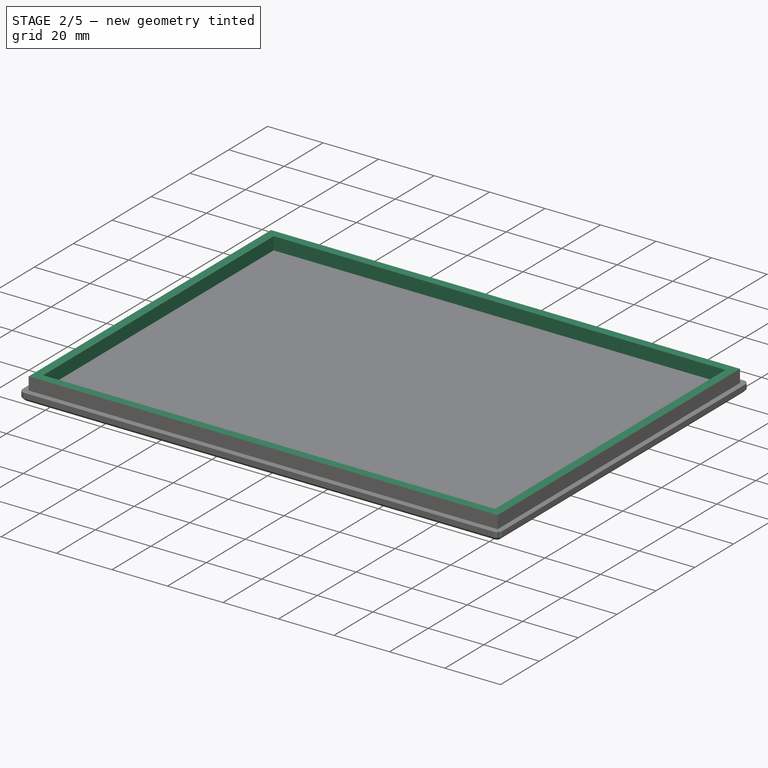
[diagram: stage 2 of 5 — iso view after this stage's code; geometry added in this stage tinted green]
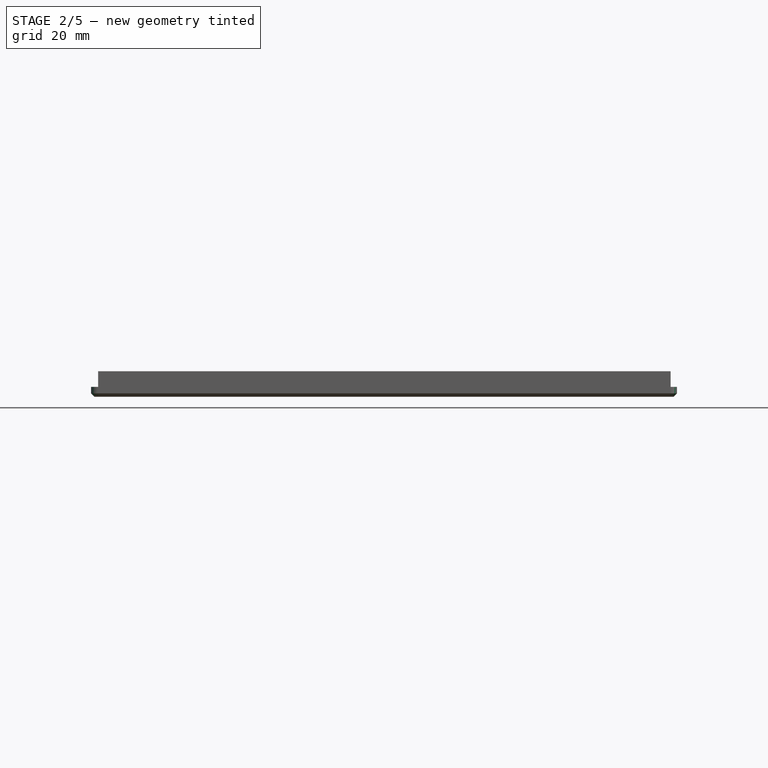
[diagram: stage 2 of 5 — front view after this stage's code; geometry added in this stage tinted green]
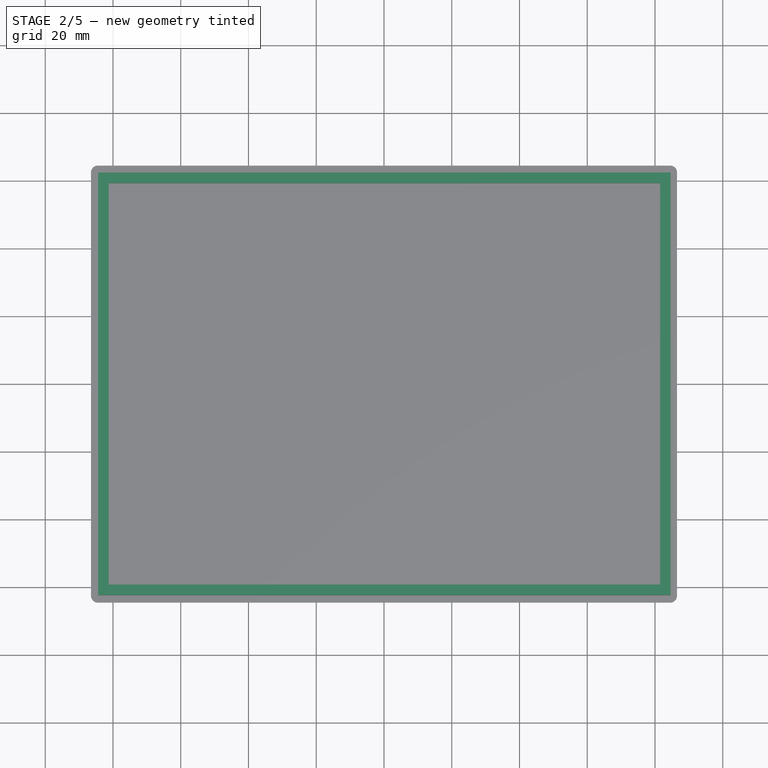
[diagram: stage 2 of 5 — top view after this stage's code; geometry added in this stage tinted green]
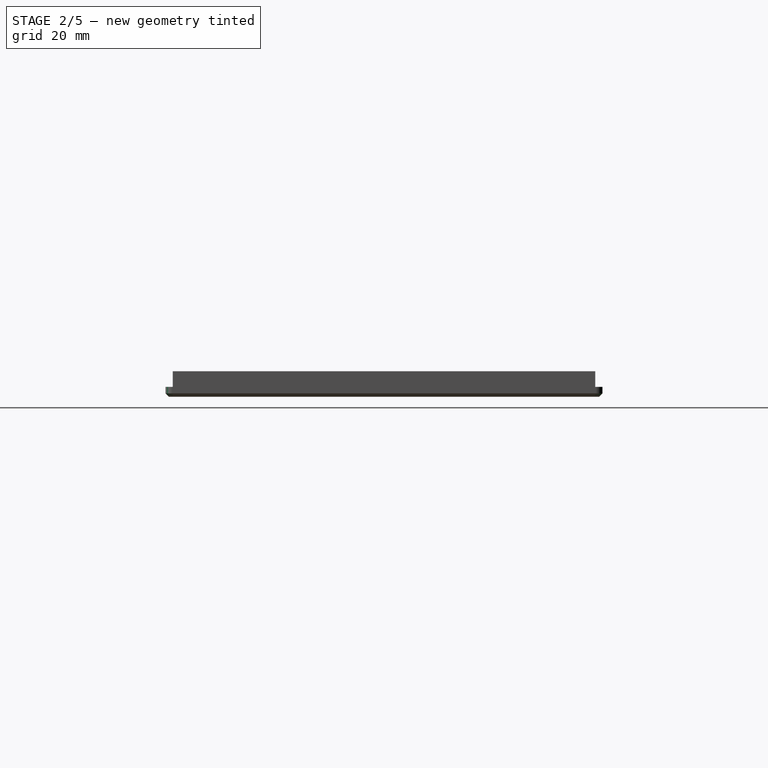
[diagram: stage 2 of 5 — right view after this stage's code; geometry added in this stage tinted green]
FEATURE [PartDesign::Chamfer] Chamfer
  Angle = 45
  Base = -> Fillet [Edge23]
  BaseFeature = -> Fillet
  ChamferType = 0
  FlipDirection = false
  Size = 1
  Size2 = 1
  SupportTransform = false
  Suppressed = false
  UseAllEdges = false
FEATURE [PartDesign::Fillet] Fillet001
  Base = -> Pad004 [Edge2,Edge5,Edge1,Edge8]
  BaseFeature = -> Pad004
  Radius = 2
  SupportTransform = false
  Suppressed = false
  UseAllEdges = false
  expr: Radius = <<Fillet>>.Radius
FEATURE [PartDesign::Chamfer] Chamfer001
  Angle = 45
  Base = -> Fillet001 [Edge7]
  BaseFeature = -> Fillet001
  ChamferType = 0
  FlipDirection = false
  Size = 1
  Size2 = 1
  SupportTransform = false
  Suppressed = false
  UseAllEdges = false
  expr: Size = <<Chamfer>>.Size
FEATURE [Sketcher::SketchObject] Sketch009
  ArcFitTolerance = 1e-06
  AttachmentOffset = pos=(0,0,-13.1) rot=(0,0,1;0rad)
  AttachmentSupport = -> [XY_Plane002]
  ExternalGeometry = -> [Sketch012]
  FullyConstrained = true
  MakeInternals = false
  MapMode = 5
  Placement = pos=(0,0,-13.1) rot=(0,0,1;0rad)
  expr: .AttachmentOffset.Base.z = <<Sketch008>>.Placement.Base.z + <<Pad004>>.Length
  sketch-geometry (8):
    g0: LineSegment StartX=-84.38 StartY=62.38 StartZ=0 EndX=-84.38 EndY=-62.38 EndZ=0
    g1: LineSegment StartX=-84.38 StartY=-62.38 StartZ=0 EndX=84.62 EndY=-62.38 EndZ=0
    g2: LineSegment StartX=84.62 StartY=-62.38 StartZ=0 EndX=84.62 EndY=62.38 EndZ=0
    g3: LineSegment StartX=84.62 StartY=62.38 StartZ=0 EndX=-84.38 EndY=62.38 EndZ=0
    g4: LineSegment StartX=-81.28 StartY=59.28 StartZ=0 EndX=-81.28 EndY=-59.28 EndZ=0
    g5: LineSegment StartX=-81.28 StartY=-59.28 StartZ=0 EndX=81.52 EndY=-59.28 EndZ=0
    g6: LineSegment StartX=81.52 StartY=-59.28 StartZ=0 EndX=81.52 EndY=59.28 EndZ=0
    g7: LineSegment StartX=81.52 StartY=59.28 StartZ=0 EndX=-81.28 EndY=59.28 EndZ=0
  constraints (16):
    c: Coincident(g0,g1)
    c: Coincident(g1,g2)
    c: Coincident(g2,g3)
    c: Coincident(g3,g0)
    c: Coincident(g4,g5)
    c: Coincident(g5,g6)
    c: Coincident(g6,g7)
    c: Coincident(g7,g4)
    c: Coincident(g0,g-3)
    c: Coincident(g4,g-4)
    c: Coincident(g2,g-3)
    c: Coincident(g6,g-4)
    c: Coincident(g5,g-5)
    c: Coincident(g1,g-6)
    c: Coincident(g0,g-6)
    c: Coincident(g4,g-5)
FEATURE [PartDesign::Pad] Pad005
  BaseFeature = -> Chamfer001
  Direction = (0,0,1)
  Length = 4.6
  Length2 = 10
  Profile = -> Sketch009
  ReferenceAxis = -> Sketch009 [N_Axis]
  Suppressed = false
  Type = 0
  expr: Length = <<Constants>>.BackTolerance + <<Constants>>.BackOverlap + <<Constants>>.LockHeight + 0.5 mm
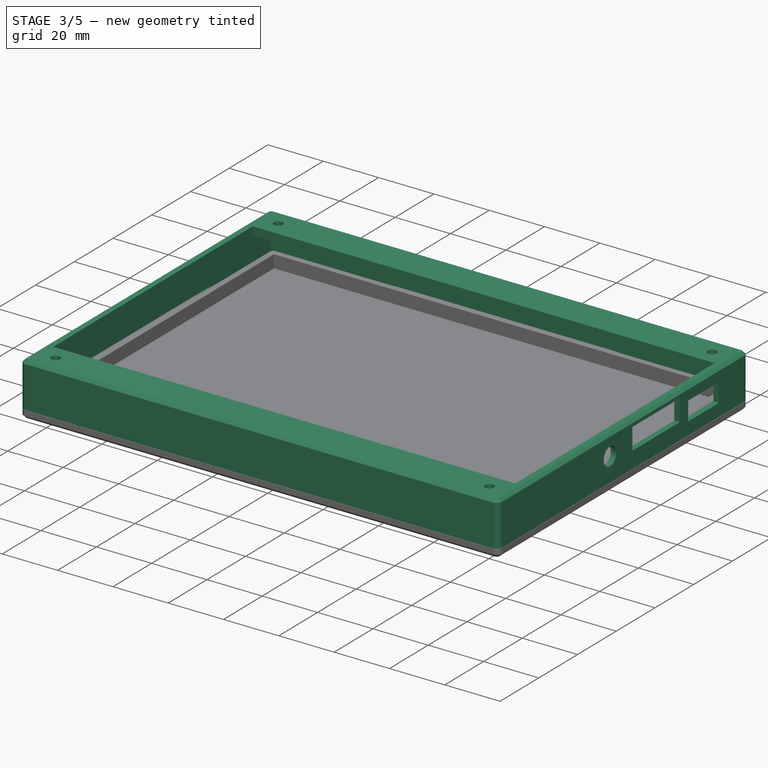
[diagram: stage 3 of 5 — iso view after this stage's code; geometry added in this stage tinted green]
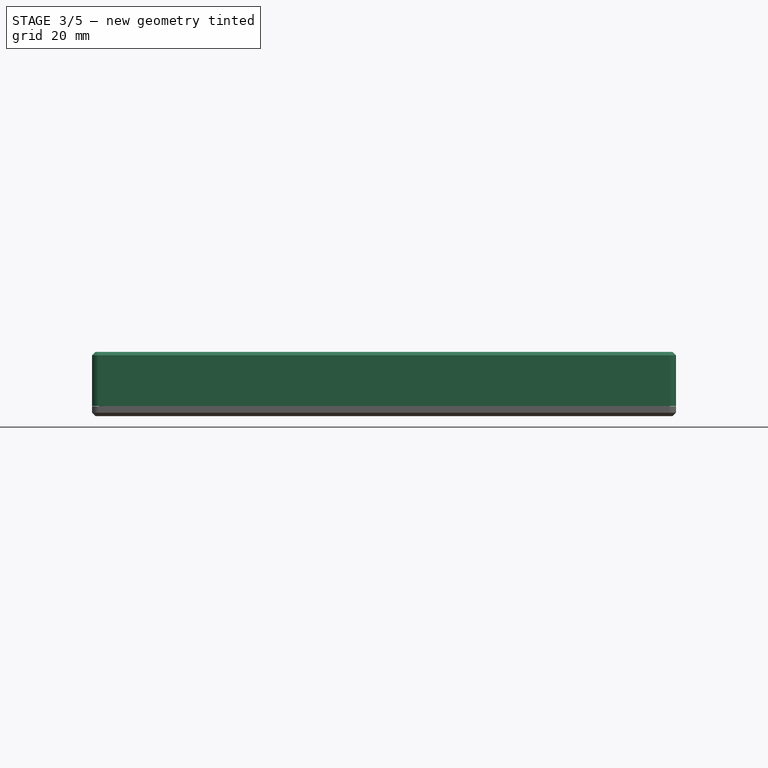
[diagram: stage 3 of 5 — front view after this stage's code; geometry added in this stage tinted green]
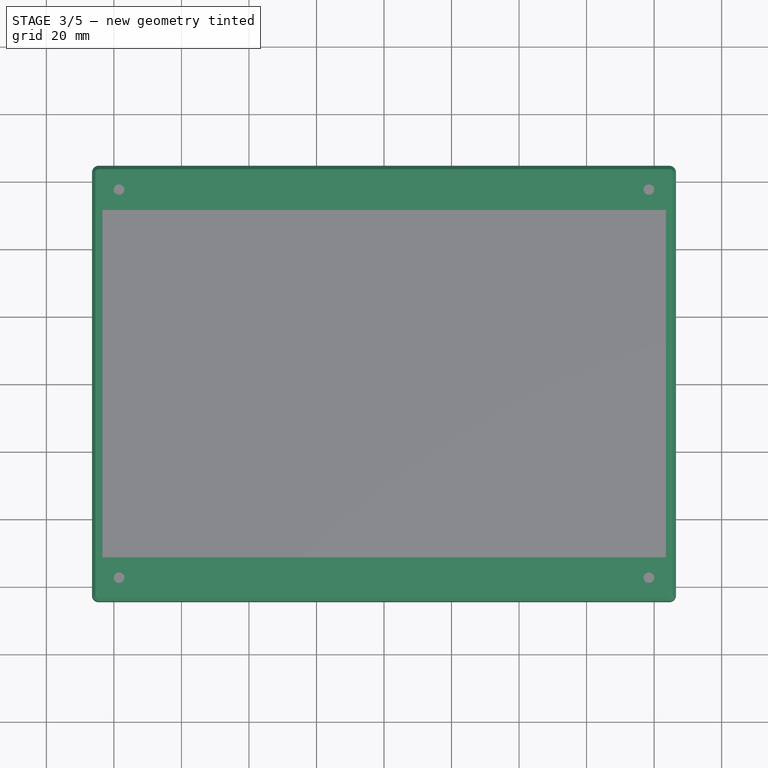
[diagram: stage 3 of 5 — top view after this stage's code; geometry added in this stage tinted green]
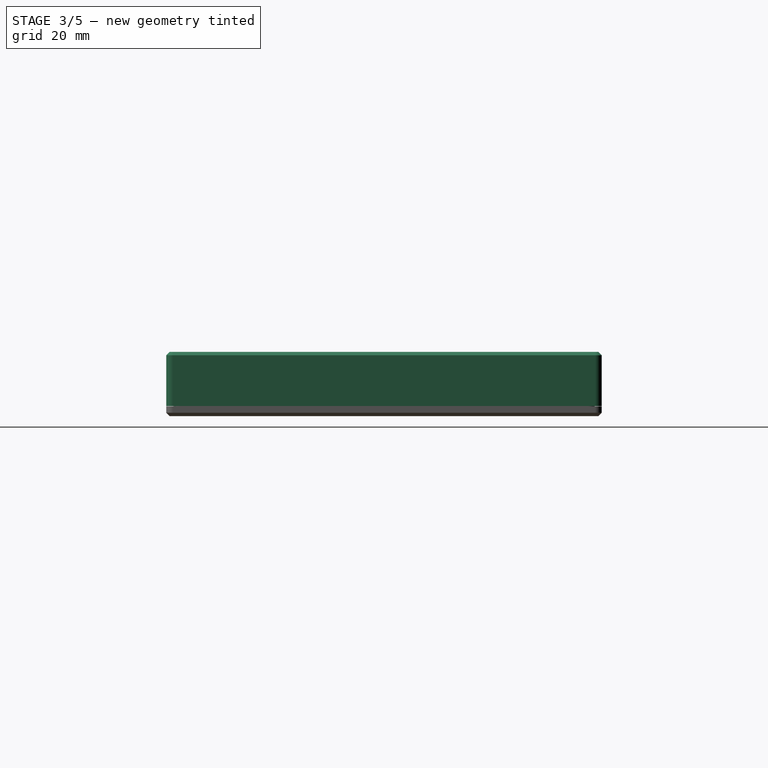
[diagram: stage 3 of 5 — right view after this stage's code; geometry added in this stage tinted green]
FEATURE [PartDesign::Pad] Pad002  label="F_YZLock_"
  BaseFeature = -> Chamfer
  Direction = (1,0,0)
  Length = 80
  Length2 = 10
  Midplane = true
  Profile = -> Sketch006
  ReferenceAxis = -> Sketch006 [N_Axis]
  Suppressed = false
  Type = 0
FEATURE [PartDesign::Pad] Pad003  label="F_XZLock_"
  BaseFeature = -> Pad002
  Direction = (0,-1,2e-16)
  Length = 60
  Length2 = 10
  Midplane = true
  Profile = -> Sketch007
  ReferenceAxis = -> Sketch007 [N_Axis]
  Suppressed = false
  Type = 0
FEATURE [PartDesign::Fillet] Fillet002
  Base = -> Pad005 [Edge46,Edge41,Edge44,Edge42]
  BaseFeature = -> Pad005
  Radius = 2
  SupportTransform = false
  Suppressed = false
  UseAllEdges = false
  expr: Radius = <<Fillet001>>.Radius
FEATURE [PartDesign::Chamfer] Chamfer002
  Angle = 45
  Base = -> Fillet002 [Edge27]
  BaseFeature = -> Fillet002
  ChamferType = 0
  FlipDirection = false
  Size = 1
  Size2 = 1
  SupportTransform = false
  Suppressed = false
  UseAllEdges = false
FEATURE [Sketcher::SketchObject] Sketch010
  ArcFitTolerance = 1e-06
  AttachmentSupport = -> [YZ_Plane002]
  ExternalGeometry = -> [ShapeBinder004,Sketch009]
  FullyConstrained = true
  MakeInternals = false
  MapMode = 5
  Placement = pos=(0,0,0) rot=(0.57735,0.57735,0.57735;2.0944rad)
  sketch-geometry (10):
    g0: LineSegment StartX=-62.38 StartY=-9 StartZ=0 EndX=-62.38 EndY=-12 EndZ=0
    g1: LineSegment StartX=-62.38 StartY=-12 StartZ=0 EndX=-60.88 EndY=-10.5 EndZ=0
    g2: LineSegment StartX=-60.88 StartY=-10.5 StartZ=0 EndX=-62.38 EndY=-9 EndZ=0
    g3: LineSegment [constr] StartX=62.5 StartY=-9 StartZ=0 EndX=-62.38 EndY=-9 EndZ=0
    g4: LineSegment [constr] StartX=62.5 StartY=-12 StartZ=0 EndX=-62.38 EndY=-12 EndZ=0
    g5: LineSegment [constr] StartX=-62.5 StartY=-9 StartZ=0 EndX=62.38 EndY=-9 EndZ=0
    g6: LineSegment [constr] StartX=-62.5 StartY=-12 StartZ=0 EndX=62.38 EndY=-12 EndZ=0
    g7: LineSegment StartX=62.38 StartY=-9 StartZ=0 EndX=62.38 EndY=-12 EndZ=0
    g8: LineSegment StartX=62.38 StartY=-9 StartZ=0 EndX=60.88 EndY=-10.5 EndZ=0
    g9: LineSegment StartX=60.88 StartY=-10.5 StartZ=0 EndX=62.38 EndY=-12 EndZ=0
  constraints (26):
    c: Coincident(g0,g1)
    c: Coincident(g1,g2)
    c: Coincident(g2,g0)
    c: Coincident(g3,g-5)
    c: Coincident(g3,g0)
    c: Coincident(g4,g-5)
    c: Coincident(g4,g0)
    c: Horizontal(g4)
    c: Horizontal(g3)
    c: Equal(g3,g4)
    c: PointOnObject(g-6,g0)
    c: Coincident(g5,g-8)
    c: Horizontal(g5)
    c: Coincident(g6,g-9)
    c: Horizontal(g6)
    c: Coincident(g7,g5)
    c: Coincident(g7,g6)
    c: PointOnObject(g-6,g7)
    c: Parallel(g-8,g7)
    c: Coincident(g8,g5)
    c: Coincident(g9,g8)
    c: Coincident(g9,g6)
    c: Parallel(g2,g-7)
    c: Parallel(g-9,g1)
    c: Parallel(g-4,g8)
    c: Parallel(g-3,g9)
FEATURE [PartDesign::Pocket] Pocket001
  BaseFeature = -> Chamfer002
  Direction = (-1,0,0)
  Length = 80.48
  Length2 = 5
  Midplane = true
  Profile = -> Sketch010
  ReferenceAxis = -> Sketch010 [N_Axis]
  Suppressed = false
  Type = 0
  expr: Length = <<F_YZLock_>>.Length + 4 * <<Constants>>.WallTolerance
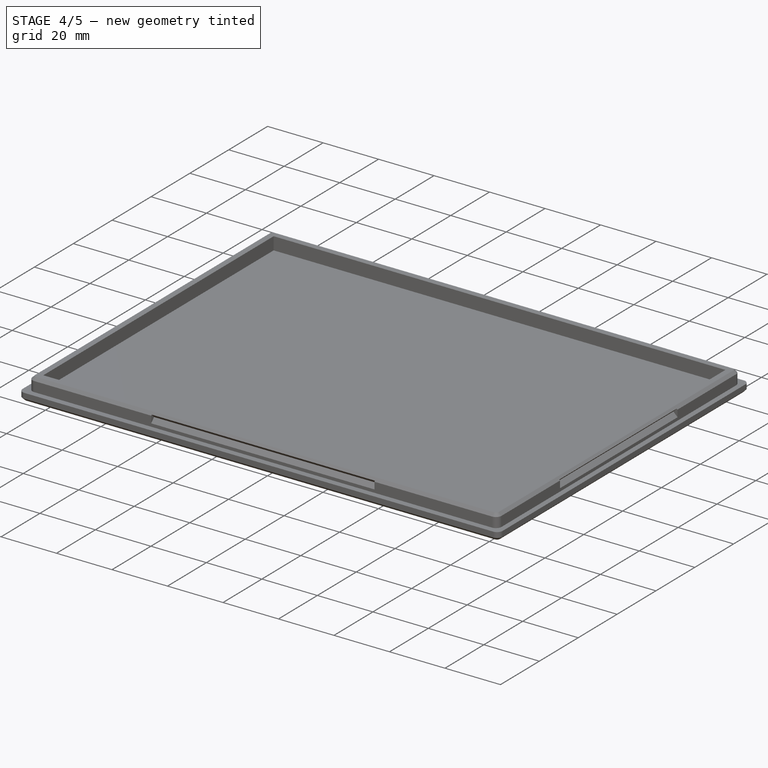
[diagram: stage 4 of 5 — iso view after this stage's code; geometry added in this stage tinted green]
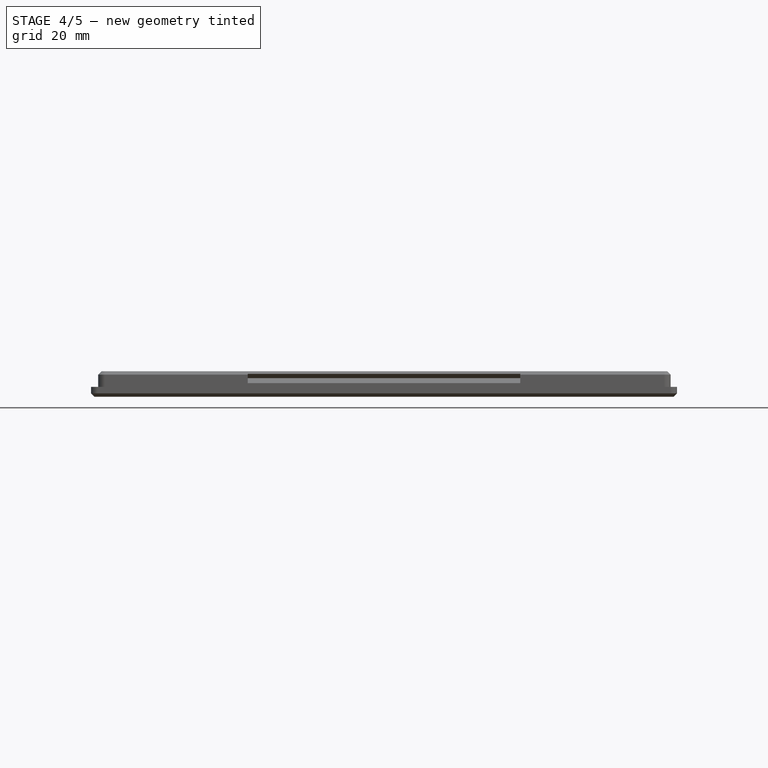
[diagram: stage 4 of 5 — front view after this stage's code; geometry added in this stage tinted green]
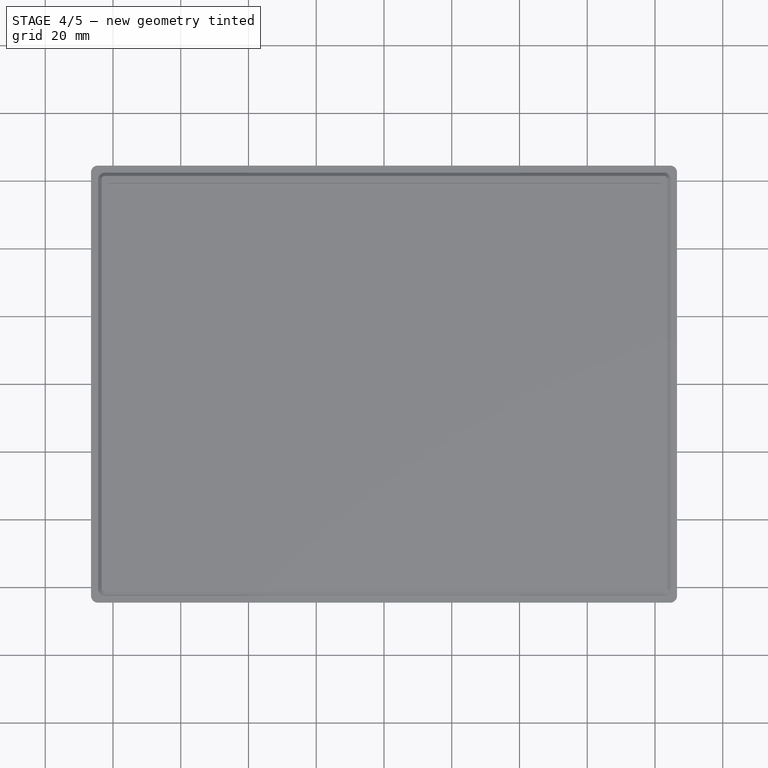
[diagram: stage 4 of 5 — top view after this stage's code; geometry added in this stage tinted green]
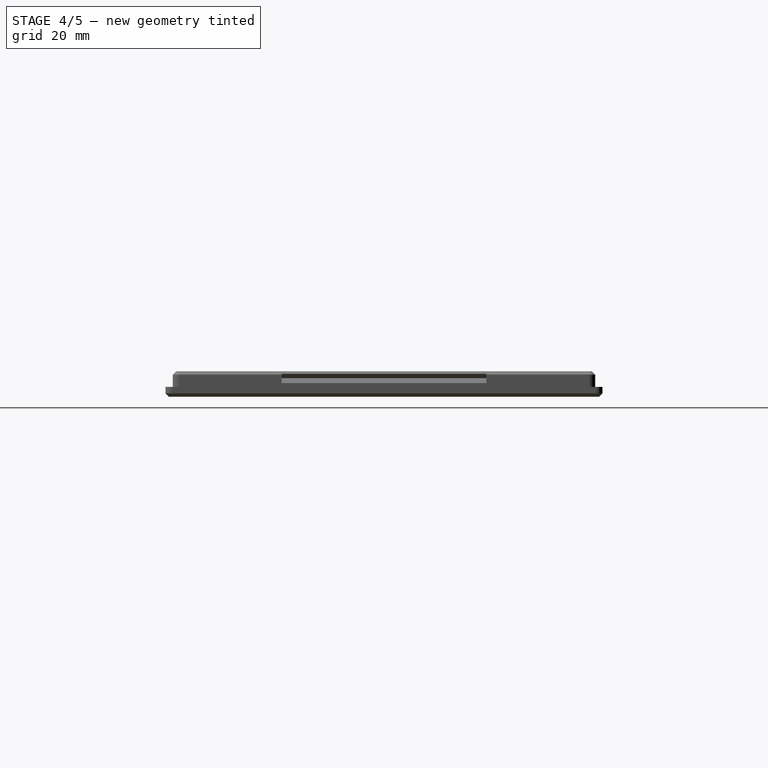
[diagram: stage 4 of 5 — right view after this stage's code; geometry added in this stage tinted green]
FEATURE [Sketcher::SketchObject] Sketch011
  ArcFitTolerance = 1e-06
  AttachmentSupport = -> [XZ_Plane002]
  ExternalGeometry = -> [Sketch009,ShapeBinder005]
  FullyConstrained = true
  MakeInternals = false
  MapMode = 5
  Placement = pos=(0,0,0) rot=(1,0,0;1.5708rad)
  sketch-geometry (10):
    g0: LineSegment [constr] StartX=-84.5 StartY=-9 StartZ=0 EndX=-84.38 EndY=-9 EndZ=0
    g1: LineSegment [constr] StartX=-84.5 StartY=-12 StartZ=0 EndX=-84.38 EndY=-12 EndZ=0
    g2: LineSegment [constr] StartX=84.5 StartY=-12 StartZ=0 EndX=84.62 EndY=-12 EndZ=0
    g3: LineSegment [constr] StartX=84.5 StartY=-9 StartZ=0 EndX=84.62 EndY=-9 EndZ=0
    g4: LineSegment StartX=84.62 StartY=-9 StartZ=0 EndX=84.62 EndY=-12 EndZ=0
    g5: LineSegment StartX=84.62 StartY=-12 StartZ=0 EndX=83.12 EndY=-10.5 EndZ=0
    g6: LineSegment StartX=83.12 StartY=-10.5 StartZ=0 EndX=84.62 EndY=-9 EndZ=0
    g7: LineSegment StartX=-84.38 StartY=-9 StartZ=0 EndX=-84.38 EndY=-12 EndZ=0
    g8: LineSegment StartX=-84.38 StartY=-12 StartZ=0 EndX=-82.88 EndY=-10.5 EndZ=0
    g9: LineSegment StartX=-82.88 StartY=-10.5 StartZ=0 EndX=-84.38 EndY=-9 EndZ=0
  constraints (26):
    c: Coincident(g0,g-5)
    c: Horizontal(g0)
    c: Coincident(g1,g-6)
    c: Horizontal(g1)
    c: Coincident(g2,g-9)
    c: Horizontal(g2)
    c: Coincident(g3,g-8)
    c: Horizontal(g3)
    c: Coincident(g3,g4)
    c: Coincident(g4,g2)
    c: Coincident(g4,g5)
    c: Coincident(g5,g6)
    c: Coincident(g6,g4)
    c: Parallel(g-8,g4)
    c: Parallel(g-7,g6)
    c: Parallel(g-9,g5)
    c: PointOnObject(g-3,g4)
    c: Coincident(g0,g7)
    c: Coincident(g7,g1)
    c: Coincident(g7,g8)
    c: Coincident(g8,g9)
    c: Coincident(g9,g7)
    c: Parallel(g-4,g7)
    c: Parallel(g8,g-6)
    c: Parallel(g-5,g9)
    c: PointOnObject(g-3,g7)
FEATURE [PartDesign::Pocket] Pocket002
  BaseFeature = -> Pocket001
  Direction = (0,1,-2e-16)
  Length = 60.48
  Length2 = 5
  Midplane = true
  Profile = -> Sketch011
  ReferenceAxis = -> Sketch011 [N_Axis]
  Suppressed = false
  Type = 0
  expr: Length = <<F_XZLock_>>.Length + 4 * <<Constants>>.WallTolerance
FEATURE [PartDesign::Body] Body002  label="BackBase"
  AllowCompound = false
  Group = -> [ShapeBinder002,ShapeBinder003,ShapeBinder004,ShapeBinder005,Sketch012,Sketch008,Pad004,Fillet001,Chamfer001,Sketch009,Pad005,Fillet002,Chamfer002,Sketch010,Pocket001,Sketch011,Pocket002]
  Origin = -> Origin002
  Tip = -> Pocket002
FEATURE [Spreadsheet::Sheet] Spreadsheet001  label="Calc"
  cells = B2='GridBaseWidth; C2(GridBaseWidth)==<<B_Template_T>>.Constraints.InternalWidth; B3='GridBaseLength; C3(GridBaseLength)==<<B_Template_T>>.Constraints.InternalLength; B5='HexGridRepeatX; C5(HexGridRepeatX)==<<B_HexGridCalc>>.Constraints.GridRepeatX; B6='HexGridRepeatY; C6(HexGridRepeatY)==<<B_HexGridCalc>>.Constraints.GridRepeatY; B8='HexGridCountX; C8(HexGridCountX)==floor((GridBaseWidth - <<B_HexGridCalc>>.Constraints.LastExtraX) / HexGridRepeatX); B9='HexGridCountY; C9(HexGridCountY)==floor((GridBaseLength - <<B_HexGridCalc>>.Constraints.LastExtraY) / HexGridRepeatY); B10='HexGrigMarginX; C10(HexGrigMarginX)==(GridBaseWidth - <<B_HexGridCalc>>.Constraints.LastExtraX - HexGridCountX * HexGridRepeatX) / 2; B11='HexGridMarginY; C11(HexGridMarginY)==(GridBaseLength - <<B_HexGridCalc>>.Constraints.LastExtraY - HexGridCountY * HexGridRepeatY) / 2
FEATURE [PartDesign::FeatureBase] Clone
  BaseFeature = -> Body002
  Suppressed = false
FEATURE [PartDesign::Body] Body003  label="BackHexGrid"
  AllowCompound = false
  Group = -> [Clone,ShapeBinder006,Sketch017,Sketch018,Pocket005,MultiTransform,LinearPattern,LinearPattern001,Sketch019,Pad006,Sketch020,Pocket006]
  Origin = -> Origin003
  Tip = -> Pocket006
FEATURE [PartDesign::FeatureBase] Clone001
  BaseFeature = -> Body002
  Suppressed = false
FEATURE [PartDesign::ShapeBinder] ShapeBinder007
  Support = -> [Sketch012]
  TraceSupport = false
FEATURE [Sketcher::SketchObject] Sketch021
  ArcFitTolerance = 1e-06
  AttachmentSupport = -> [XY_Plane004]
  ExternalGeometry = -> [ShapeBinder007]
  FullyConstrained = true
  MakeInternals = false
  MapMode = 5
  sketch-geometry (4):
    g0: Circle CenterX=0.12 CenterY=25 CenterZ=0 NormalX=0 NormalY=0 NormalZ=1 AngleXU=0 Radius=1.75
    g1: Circle CenterX=25.12 CenterY=8e-15 CenterZ=0 NormalX=0 NormalY=0 NormalZ=1 AngleXU=0 Radius=1.75
    g2: Circle CenterX=0.12 CenterY=-25 CenterZ=0 NormalX=0 NormalY=0 NormalZ=1 AngleXU=0 Radius=1.75
    g3: Circle CenterX=-24.88 CenterY=8e-15 CenterZ=0 NormalX=0 NormalY=0 NormalZ=1 AngleXU=0 Radius=1.75
  constraints (8):
    c: Coincident(g0,g-3)
    c: Equal(g0,g-3)
    c: Coincident(g1,g-4)
    c: Coincident(g2,g-5)
    c: Equal(g2,g-5)
    c: Coincident(g3,g-6)
    c: Equal(g3,g-6)
    c: Equal(g3,g1)
FEATURE [PartDesign::Pocket] Pocket007
  BaseFeature = -> Clone001
  Direction = (0,0,-1)
  Length = 5
  Length2 = 5
  Profile = -> Sketch021
  ReferenceAxis = -> Sketch021 [N_Axis]
  Suppressed = false
  Type = 1
FEATURE [PartDesign::Body] Body004  label="BackFull"
  AllowCompound = false
  Group = -> [Clone001,ShapeBinder007,Sketch021,Pocket007]
  Origin = -> Origin004
  Tip = -> Pocket007
FEATURE [PartDesign::Body] Body005  label="Body"
  AllowCompound = false
  Origin = -> Origin005
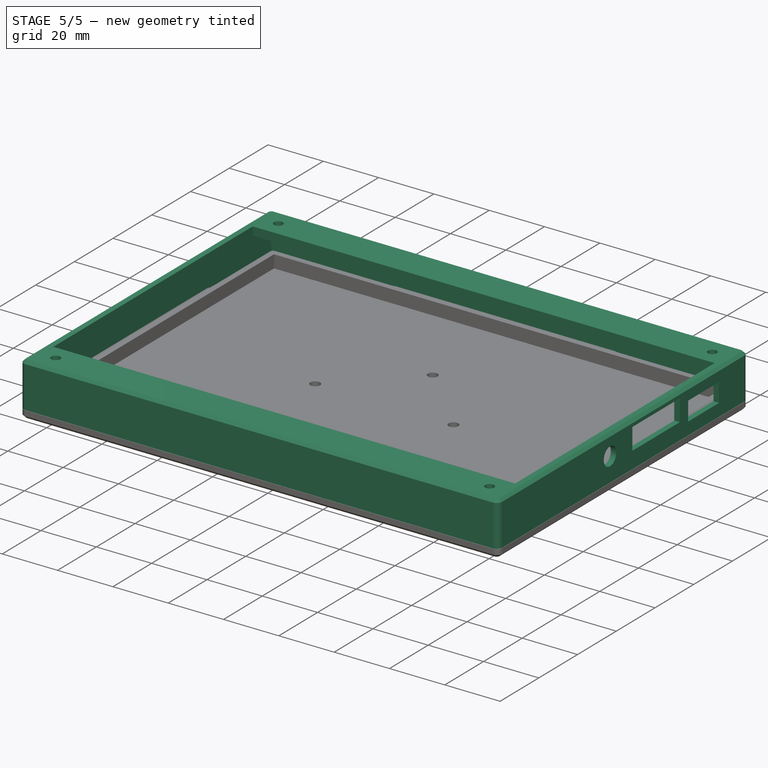
[diagram: stage 5 of 5 — iso view after this stage's code; geometry added in this stage tinted green]
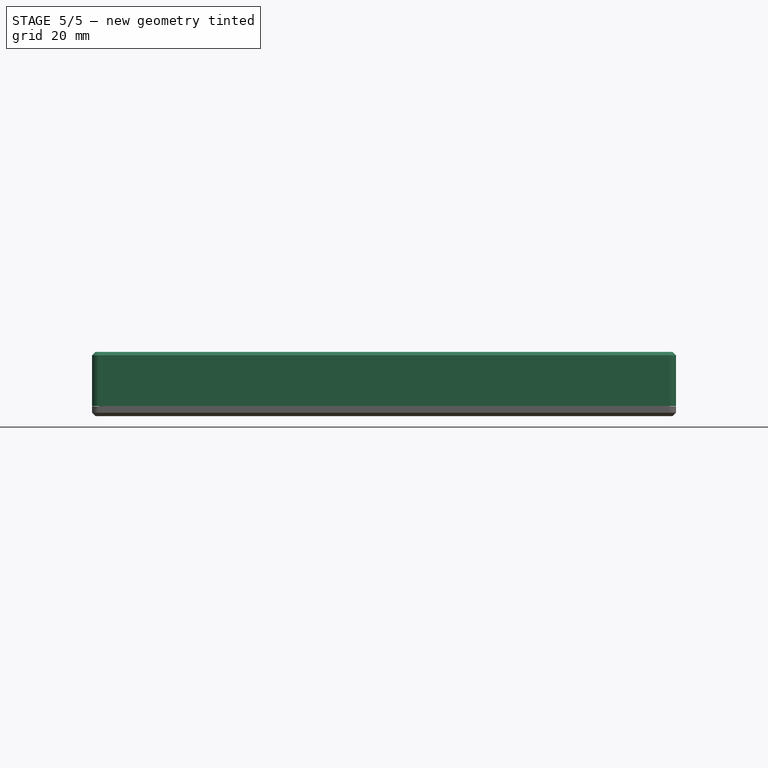
[diagram: stage 5 of 5 — front view after this stage's code; geometry added in this stage tinted green]
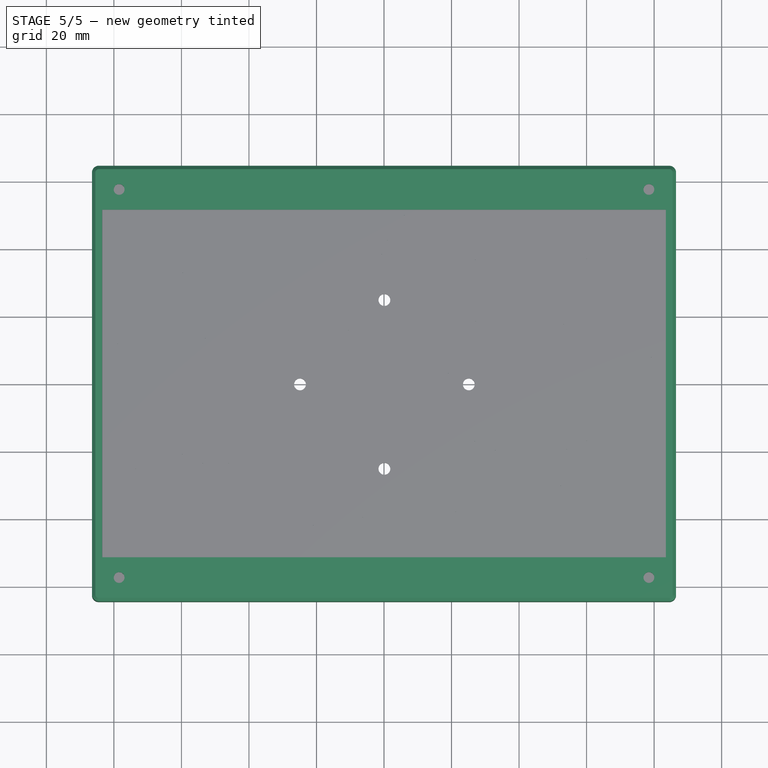
[diagram: stage 5 of 5 — top view after this stage's code; geometry added in this stage tinted green]
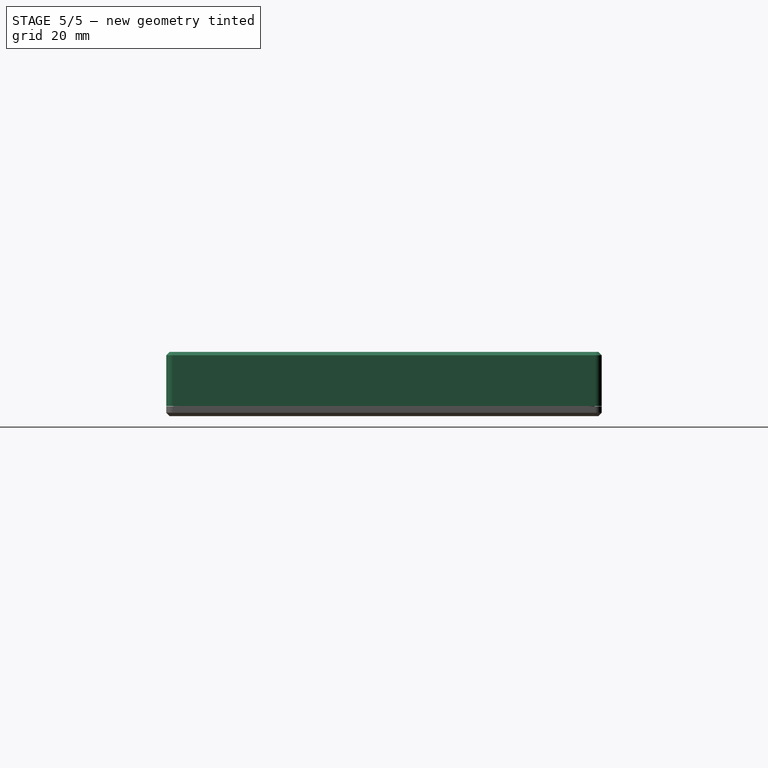
[diagram: stage 5 of 5 — right view after this stage's code; geometry added in this stage tinted green]
FEATURE [PartDesign::ShapeBinder] ShapeBinder002  label="B_T"
  Support = -> [Sketch]
  TraceSupport = false
FEATURE [PartDesign::ShapeBinder] ShapeBinder003  label="B_R"
  Placement = pos=(0,0,0) rot=(0.57735,0.57735,0.57735;2.0944rad)
  Support = -> [Sketch002]
  TraceSupport = false
FEATURE [PartDesign::ShapeBinder] ShapeBinder004  label="B_F_YZLock"
  Placement = pos=(0,0,0) rot=(0.57735,0.57735,0.57735;2.0944rad)
  Support = -> [Sketch006]
  TraceSupport = false
FEATURE [PartDesign::ShapeBinder] ShapeBinder005  label="B_F_XZLock"
  Placement = pos=(0,0,0) rot=(1,0,0;1.5708rad)
  Support = -> [Sketch007]
  TraceSupport = false
FEATURE [PartDesign::Fillet] Fillet003
  Base = -> Pad003 [Edge136,Edge133,Edge128,Edge141]
  BaseFeature = -> Pad003
  Radius = 0.2
  SupportTransform = false
  Suppressed = false
  UseAllEdges = false
FEATURE [Sketcher::SketchObject] Sketch017  label="B_HexGridCalc"
  ArcFitTolerance = 1e-06
  AttachmentSupport = -> [XY_Plane003]
  FullyConstrained = true
  MakeInternals = false
  MapMode = 5
  expr: Constraints[54] = <<Constants>>.GridSpacing
  expr: Constraints[62] = <<Constants>>.GridHoleDiameter
  sketch-geometry (21):
    g0: LineSegment StartX=0.417885 StartY=1.9238 StartZ=0 EndX=-1.45712 EndY=5.17139 EndZ=0
    g1: LineSegment StartX=-1.45712 StartY=5.17139 StartZ=0 EndX=-5.20712 EndY=5.17139 EndZ=0
    g2: LineSegment StartX=-5.20712 StartY=5.17139 StartZ=0 EndX=-7.08212 EndY=1.9238 EndZ=0
    g3: LineSegment StartX=-7.08212 StartY=1.9238 StartZ=0 EndX=-5.20712 EndY=-1.3238 EndZ=0
    g4: LineSegment StartX=-5.20712 StartY=-1.3238 StartZ=0 EndX=-1.45712 EndY=-1.3238 EndZ=0
    g5: LineSegment StartX=-1.45712 StartY=-1.3238 StartZ=0 EndX=0.417885 EndY=1.9238 EndZ=0
    g6: Circle CenterX=-3.33212 CenterY=1.9238 CenterZ=0 NormalX=0 NormalY=0 NormalZ=1 AngleXU=0 Radius=3.75
    g7: LineSegment StartX=5.20712 StartY=-5.17139 StartZ=0 EndX=7.08212 EndY=-1.9238 EndZ=0
    g8: LineSegment StartX=7.08212 StartY=-1.9238 StartZ=0 EndX=5.20712 EndY=1.3238 EndZ=0
    g9: LineSegment StartX=5.20712 StartY=1.3238 StartZ=0 EndX=1.45712 EndY=1.3238 EndZ=0
    g10: LineSegment StartX=1.45712 StartY=1.3238 StartZ=0 EndX=-0.417885 EndY=-1.9238 EndZ=0
    g11: LineSegment StartX=-0.417885 StartY=-1.9238 StartZ=0 EndX=1.45712 EndY=-5.17139 EndZ=0
    g12: LineSegment StartX=1.45712 StartY=-5.17139 StartZ=0 EndX=5.20712 EndY=-5.17139 EndZ=0
    g13: Circle [constr] CenterX=3.33212 CenterY=-1.9238 CenterZ=0 NormalX=0 NormalY=0 NormalZ=1 AngleXU=0 Radius=3.75
    g14: LineSegment [constr] StartX=1.45712 StartY=2.5238 StartZ=0 EndX=5.20712 EndY=2.5238 EndZ=0
    g15: LineSegment StartX=0.417885 StartY=1.9238 StartZ=0 EndX=1.45712 EndY=1.3238 EndZ=0
    g16: LineSegment [constr] StartX=0.417885 StartY=1.9238 StartZ=0 EndX=1.45712 EndY=2.5238 EndZ=0
    g17: LineSegment [constr] StartX=1.45712 StartY=2.5238 StartZ=0 EndX=1.45712 EndY=1.3238 EndZ=0
    g18: LineSegment [constr] StartX=5.20712 StartY=2.5238 StartZ=0 EndX=6.24635 EndY=1.9238 EndZ=0
    g19: LineSegment [constr] StartX=6.24635 StartY=1.9238 StartZ=0 EndX=5.20712 EndY=1.3238 EndZ=0
    g20: LineSegment [constr] StartX=-5.20712 StartY=-1.3238 StartZ=0 EndX=-5.20712 EndY=-2.5238 EndZ=0
  constraints (55):
    c: Coincident(g0,g1)
    c: Coincident(g1,g2)
    c: Coincident(g2,g3)
    c: Coincident(g3,g4)
    c: Coincident(g4,g5)
    c: Coincident(g5,g0)
    c: Equal(g0, g1-g5) x5
    c: PointOnObject(g0,g6)
    c: PointOnObject(g1,g6)
    c: PointOnObject(g2,g6)
    c: PointOnObject(g3,g6)
    c: PointOnObject(g4,g6)
    c: PointOnObject(g5,g6)
    c: Coincident(g7,g8)
    c: Coincident(g8,g9)
    c: Coincident(g9,g10)
    c: Coincident(g10,g11)
    c: Coincident(g12,g7)
    c: Equal(g7, g8-g12) x5
    c: PointOnObject(g7,g13)
    c: PointOnObject(g8,g13)
    c: PointOnObject(g9,g13)
    c: PointOnObject(g10,g13)
    c: PointOnObject(g11,g13)
    c: PointOnObject(g12,g13)
    c: Horizontal(g9)
    c: Horizontal(g1)
    c: Equal(g6,g13)
    c: Coincident(g15,g0)
    c: Coincident(g15,g9)
    c: Perpendicular(g5,g15)
    c: Coincident(g16,g0)
    c: Coincident(g17,g9)
    c: Equal(g15,g16)
    c: Equal(g16,g17)
    c: Coincident(g19,g8)
    c: Equal(g17,g19)
    c: Equal(g19,g18)
    c: Horizontal(g14)
    c: Equal(g9,g14)
    c: Coincident(g14,g18)
    c: Coincident(g18,g19)
    c: Coincident(g14,g16)
    c: Coincident(g14,g17)
    c: Vertical(g20)
    c: Equal(g18,g20)
    c: Distance(g0,g9) = 1.2
    c: DistanceX(g2,g18) = 13.3285  'GridRepeatX'
    c: DistanceY(g20,g1) = 7.69519  'GridRepeatY'
    c: Coincident(g11,g12)
    c: Coincident(g20,g3)
    c: Symmetric(g13,g6,g-1)  '__ANCHOR__'
    c: DistanceX(g18,g7) = 0.83577  'LastExtraX'
    c: DistanceY(g11,g20) = 2.6476  'LastExtraY'
    c: Diameter(g6) = 7.5
FEATURE [PartDesign::ShapeBinder] ShapeBinder006  label="BG_BB_Template_T"
  Support = -> [Sketch012]
  TraceSupport = false
FEATURE [Sketcher::SketchObject] Sketch018
  ArcFitTolerance = 1e-06
  AttachmentSupport = -> [XY_Plane003]
  ExternalGeometry = -> [ShapeBinder006]
  FullyConstrained = true
  MakeInternals = false
  MapMode = 5
  expr: Constraints[43] = <<Calc>>.HexGridMarginY
  expr: Constraints[45] = <<Calc>>.HexGrigMarginX
  sketch-geometry (17):
    g0: LineSegment StartX=-72.7687 StartY=55.7901 StartZ=0 EndX=-74.6437 EndY=59.0377 EndZ=0
    g1: LineSegment StartX=-74.6437 StartY=59.0377 StartZ=0 EndX=-78.3937 EndY=59.0377 EndZ=0
    g2: LineSegment StartX=-78.3937 StartY=59.0377 StartZ=0 EndX=-80.2687 EndY=55.7901 EndZ=0
    g3: LineSegment StartX=-80.2687 StartY=55.7901 StartZ=0 EndX=-78.3937 EndY=52.5425 EndZ=0
    g4: LineSegment StartX=-78.3937 StartY=52.5425 StartZ=0 EndX=-74.6437 EndY=52.5425 EndZ=0
    g5: LineSegment StartX=-74.6437 StartY=52.5425 StartZ=0 EndX=-72.7687 EndY=55.7901 EndZ=0
    g6: Circle [constr] CenterX=-76.5187 CenterY=55.7901 CenterZ=0 NormalX=0 NormalY=0 NormalZ=1 AngleXU=0 Radius=3.75
    g7: LineSegment StartX=-67.9794 StartY=48.6949 StartZ=0 EndX=-66.1044 EndY=51.9425 EndZ=0
    g8: LineSegment StartX=-66.1044 StartY=51.9425 StartZ=0 EndX=-67.9794 EndY=55.1901 EndZ=0
    g9: LineSegment StartX=-67.9794 StartY=55.1901 StartZ=0 EndX=-71.7294 EndY=55.1901 EndZ=0
    g10: LineSegment StartX=-71.7294 StartY=55.1901 StartZ=0 EndX=-73.6044 EndY=51.9425 EndZ=0
    g11: LineSegment StartX=-73.6044 StartY=51.9425 StartZ=0 EndX=-71.7294 EndY=48.6949 EndZ=0
    g12: LineSegment StartX=-71.7294 StartY=48.6949 StartZ=0 EndX=-67.9794 EndY=48.6949 EndZ=0
    g13: Circle [constr] CenterX=-69.8544 CenterY=51.9425 CenterZ=0 NormalX=0 NormalY=0 NormalZ=1 AngleXU=0 Radius=3.75
    g14: LineSegment [constr] StartX=-72.7687 StartY=55.7901 StartZ=0 EndX=-71.7294 EndY=55.1901 EndZ=0
    g15: LineSegment [constr] StartX=-78.3937 StartY=59.0377 StartZ=0 EndX=-78.3937 EndY=59.28 EndZ=0
    g16: LineSegment [constr] StartX=-80.2687 StartY=55.7901 StartZ=0 EndX=-81.28 EndY=55.7901 EndZ=0
  constraints (42):
    c: Coincident(g0,g1)
    c: Coincident(g1,g2)
    c: Coincident(g2,g3)
    c: Coincident(g3,g4)
    c: Coincident(g4,g5)
    c: Coincident(g5,g0)
    c: Equal(g0, g1-g5) x5
    c: PointOnObject(g0,g6)
    c: PointOnObject(g1,g6)
    c: PointOnObject(g2,g6)
    c: PointOnObject(g3,g6)
    c: PointOnObject(g4,g6)
    c: PointOnObject(g5,g6)
    c: Coincident(g7,g8)
    c: Coincident(g8,g9)
    c: Coincident(g9,g10)
    c: Coincident(g10,g11)
    c: Coincident(g12,g7)
    c: Equal(g7, g8-g12) x5
    c: PointOnObject(g7,g13)
    c: PointOnObject(g8,g13)
    c: PointOnObject(g9,g13)
    c: PointOnObject(g10,g13)
    c: PointOnObject(g11,g13)
    c: PointOnObject(g12,g13)
    c: Horizontal(g9)
    c: Horizontal(g1)
    c: Equal(g6,g13)
    c: Coincident(g14,g0)
    c: Coincident(g14,g9)
    c: Perpendicular(g5,g14)
    c: Coincident(g15,g1)
    c: Vertical(g15)
    c: Coincident(g16,g2)
    c: Horizontal(g16)
    c: DistanceY(g15,g15) = 0.242273
    c: Coincident(g11,g12)
    c: DistanceX(g16,g16) = 1.01135
    c: Equal(g6,g-3)
    c: Equal(g-4,g14)
    c: PointOnObject(g16,g-6)
    c: PointOnObject(g15,g-5)
FEATURE [PartDesign::Pocket] Pocket005
  BaseFeature = -> Clone
  Direction = (0,0,-1)
  Length = 5
  Length2 = 5
  Midplane = true
  Profile = -> Sketch018
  ReferenceAxis = -> Sketch018 [N_Axis]
  Suppressed = false
  Type = 1
FEATURE [PartDesign::LinearPattern] LinearPattern
  Direction = -> Sketch018 [H_Axis]
  Length = 146.613
  Mode = 1
  Occurrences = 12
  Offset = 13.3285
  Suppressed = false
  TransformMode = 0
  expr: Length = <<Calc>>.HexGridRepeatX
  expr: Occurrences = <<Calc>>.HexGridCountX
  expr: Offset = <<Calc>>.HexGridRepeatX
FEATURE [PartDesign::LinearPattern] LinearPattern001
  Direction = -> Sketch018 [V_Axis]
  Length = 107.733
  Mode = 1
  Occurrences = 15
  Offset = 7.69519
  Reversed = true
  Suppressed = false
  TransformMode = 0
  expr: Occurrences = <<Calc>>.HexGridCountY
  expr: Offset = <<Calc>>.HexGridRepeatY
FEATURE [PartDesign::MultiTransform] MultiTransform
  BaseFeature = -> Pocket005
  Originals = -> [Pocket005]
  Suppressed = false
  TransformMode = 0
  Transformations = -> [LinearPattern,LinearPattern001]
FEATURE [Sketcher::SketchObject] Sketch019
  ArcFitTolerance = 1e-06
  AttachmentOffset = pos=(0,0,-16) rot=(0,0,1;0rad)
  AttachmentSupport = -> [XY_Plane003]
  ExternalGeometry = -> [ShapeBinder006]
  FullyConstrained = true
  MakeInternals = false
  MapMode = 5
  Placement = pos=(0,0,-16) rot=(0,0,1;0rad)
  expr: .AttachmentOffset.Base.z = <<Sketch008>>.Placement.Base.z
  sketch-geometry (2):
    g0: Circle CenterX=0.12 CenterY=8e-15 CenterZ=0 NormalX=0 NormalY=0 NormalZ=1 AngleXU=0 Radius=30.75
    g1: Circle CenterX=0.12 CenterY=8e-15 CenterZ=0 NormalX=0 NormalY=0 NormalZ=1 AngleXU=0 Radius=19.25
  constraints (4):
    c: Coincident(g1,g0)
    c: Coincident(g0,g-3)
    c: Equal(g0,g-3)
    c: Equal(g-4,g1)
FEATURE [PartDesign::Pad] Pad006
  BaseFeature = -> MultiTransform
  Direction = (0,0,1)
  Length = 2.9
  Length2 = 10
  Profile = -> Sketch019
  ReferenceAxis = -> Sketch019 [N_Axis]
  Refine = true
  Suppressed = false
  Type = 0
  expr: Length = <<Pad004>>.Length
FEATURE [Sketcher::SketchObject] Sketch020
  ArcFitTolerance = 1e-06
  AttachmentOffset = pos=(0,0,-16) rot=(0,0,1;0rad)
  AttachmentSupport = -> [XY_Plane003]
  ExternalGeometry = -> [ShapeBinder006]
  FullyConstrained = true
  MakeInternals = false
  MapMode = 5
  Placement = pos=(0,0,-16) rot=(0,0,1;0rad)
  expr: .AttachmentOffset.Base.z = <<Sketch008>>.Placement.Base.z
  sketch-geometry (4):
    g0: Circle CenterX=0.12 CenterY=25 CenterZ=0 NormalX=0 NormalY=0 NormalZ=1 AngleXU=0 Radius=1.75
    g1: Circle CenterX=25.12 CenterY=8e-15 CenterZ=0 NormalX=0 NormalY=0 NormalZ=1 AngleXU=0 Radius=1.75
    g2: Circle CenterX=0.12 CenterY=-25 CenterZ=0 NormalX=0 NormalY=0 NormalZ=1 AngleXU=0 Radius=1.75
    g3: Circle CenterX=-24.88 CenterY=8e-15 CenterZ=0 NormalX=0 NormalY=0 NormalZ=1 AngleXU=0 Radius=1.75
  constraints (8):
    c: Equal(g3,g-3)
    c: Coincident(g3,g-3)
    c: Equal(g2,g-6)
    c: Coincident(g-6,g2)
    c: Equal(g-5,g1)
    c: Coincident(g1,g-5)
    c: Equal(g-4,g0)
    c: Coincident(g0,g-4)
FEATURE [PartDesign::Pocket] Pocket006
  BaseFeature = -> Pad006
  Direction = (0,0,-1)
  Length = 5
  Length2 = 5
  Profile = -> Sketch020
  ReferenceAxis = -> Sketch020 [N_Axis]
  Reversed = true
  Suppressed = false
  Type = 1
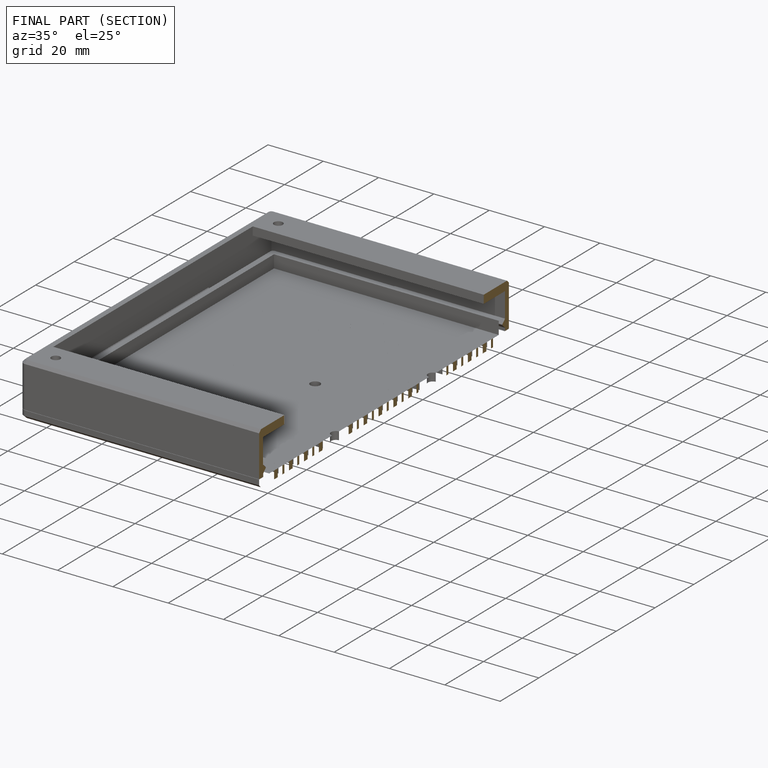
[diagram: finished part — half-section view (interior)]
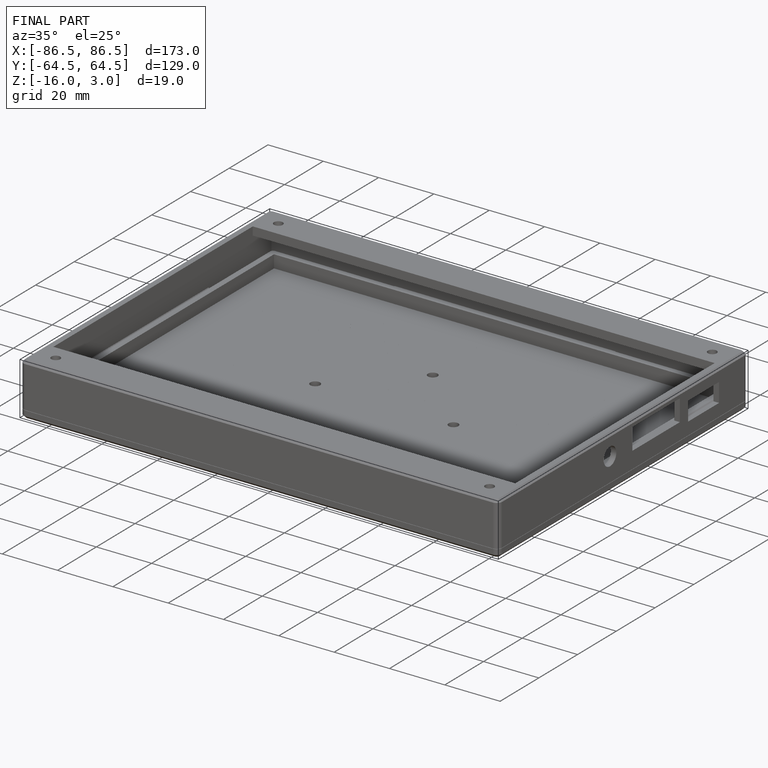
[diagram: finished part — iso view with bounding-box wireframe]
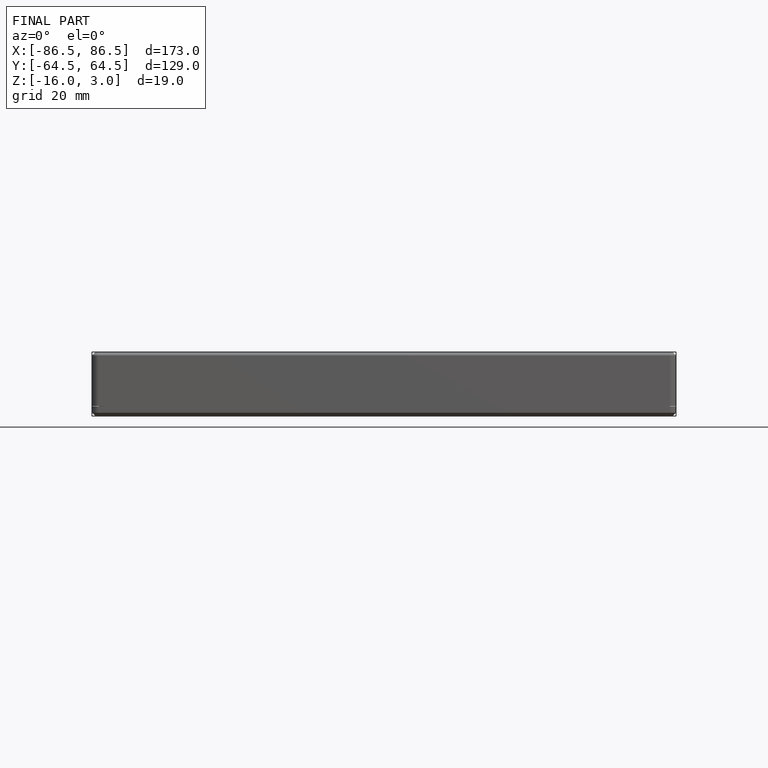
[diagram: finished part — front view with bounding-box wireframe]
